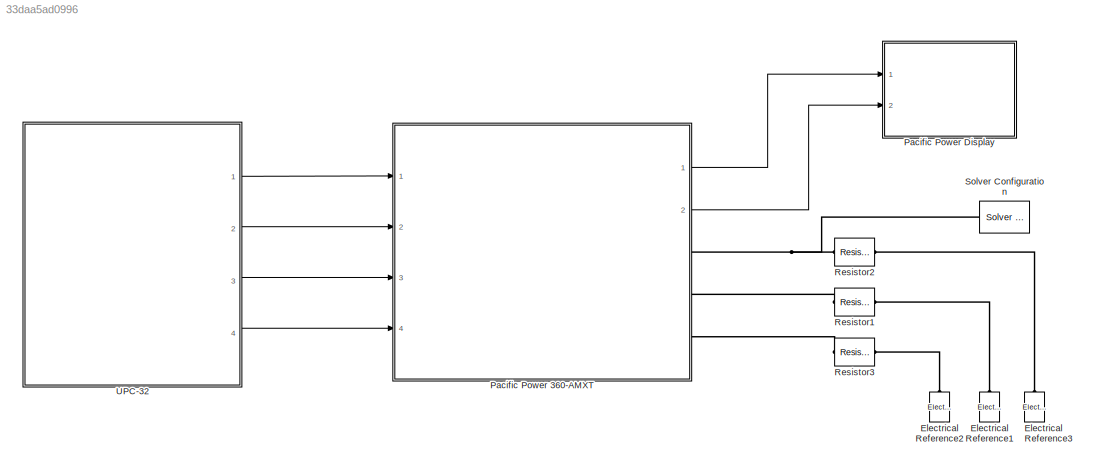
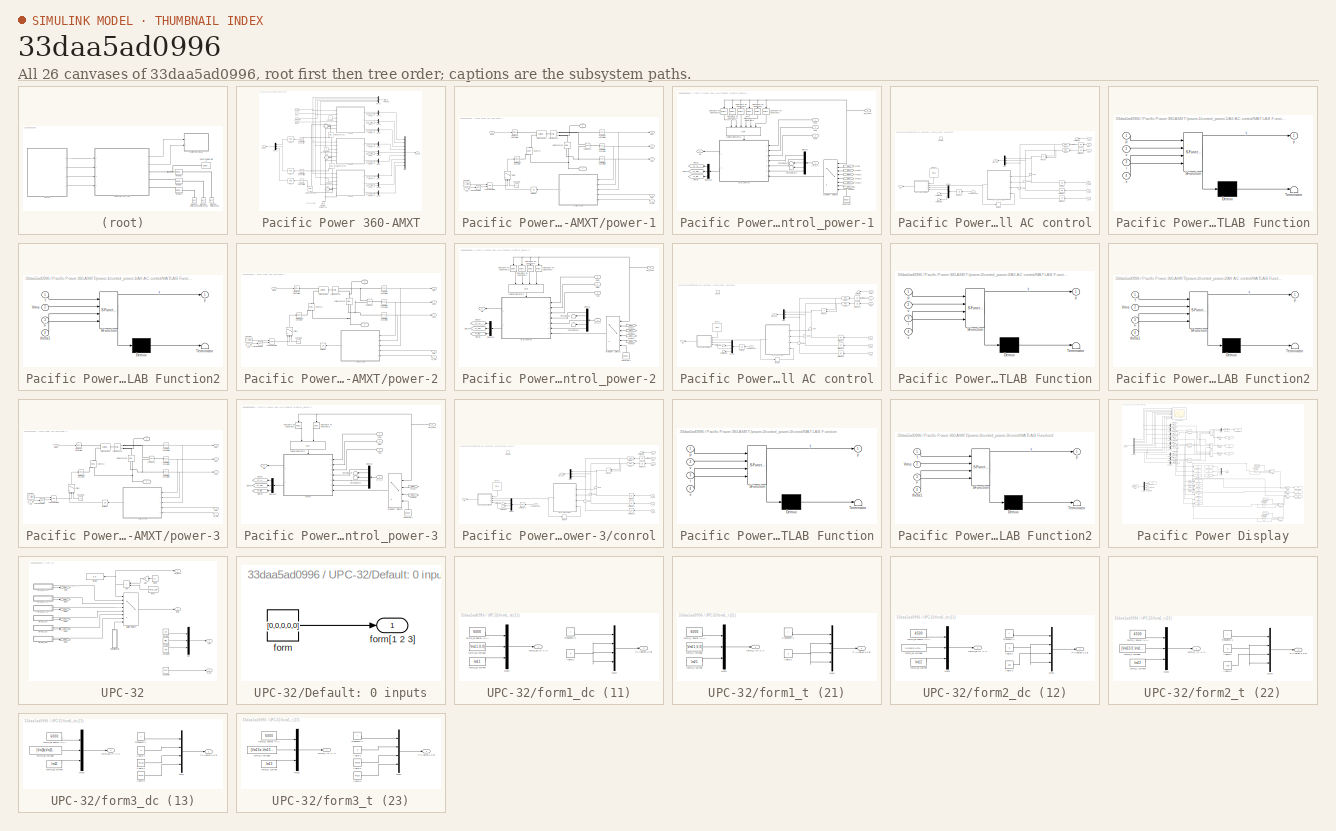
[diagram: thumbnail index - all 26 canvases of the model, root first then tree order]
MODEL slx_33daa5ad0996
KIND model
CONFIG AbsTol = auto
CONFIG EnableMultiTasking = off
CONFIG FixedStep = 0.001
CONFIG MaxStep = auto
CONFIG MinStep = auto
CONFIG RelTol = 1e-3
CONFIG SampleTimeConstraint = Unconstrained
CONFIG SolverName = VariableStepAuto
CONFIG StartTime = 0.0
CONFIG StopTime = 10
BLOCK [Reference] Electrical Reference1  REF=fl_lib/Electrical/Electrical Elements/Electrical Reference
  NameLocation = right
  Ports = [0, 0, 0, 0, 0, 1]
  SourceBlock = fl_lib/Electrical/Electrical Elements/Electrical Reference
  SourceProductBaseCode = SS
  SourceType = Electrical Reference
BLOCK [Reference] Electrical Reference2  REF=fl_lib/Electrical/Electrical Elements/Electrical Reference
  NameLocation = right
  Ports = [0, 0, 0, 0, 0, 1]
  SourceBlock = fl_lib/Electrical/Electrical Elements/Electrical Reference
  SourceProductBaseCode = SS
  SourceType = Electrical Reference
BLOCK [Reference] Electrical Reference3  REF=fl_lib/Electrical/Electrical Elements/Electrical Reference
  NameLocation = right
  Ports = [0, 0, 0, 0, 0, 1]
  SourceBlock = fl_lib/Electrical/Electrical Elements/Electrical Reference
  SourceProductBaseCode = SS
  SourceType = Electrical Reference
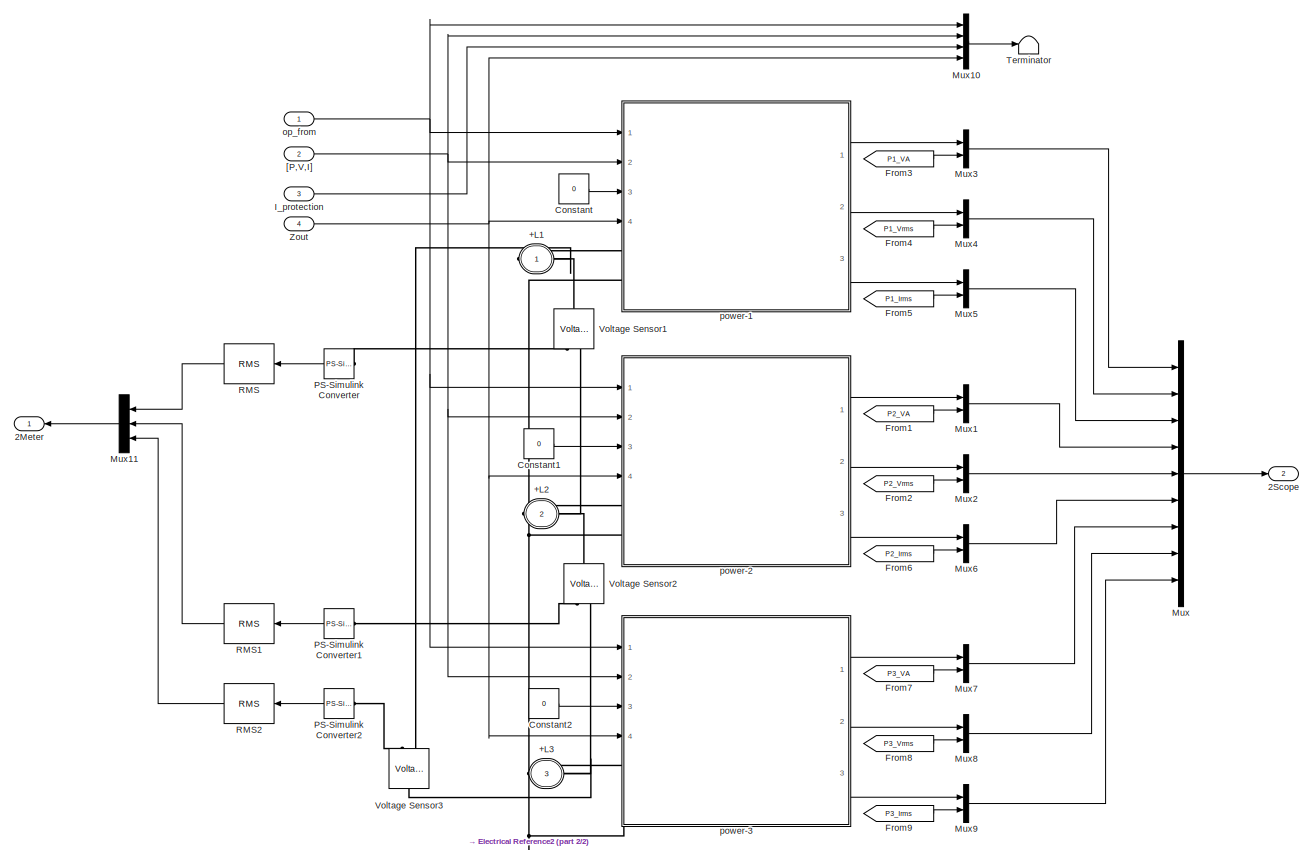
[diagram: Pacific Power 360-AMXT - part 1/2, most of the canvas]
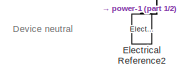
[diagram: Pacific Power 360-AMXT - part 2/2, bottom center region]
BLOCK [SubSystem] Pacific Power 360-AMXT
  Ports = [4, 2, 0, 0, 0, 0, 3]
  RequestExecContextInheritance = off
BLOCK [PMIOPort] Pacific Power 360-AMXT/+L1
  Side = Right
BLOCK [PMIOPort] Pacific Power 360-AMXT/+L2
  Port = 2
  Side = Right
BLOCK [PMIOPort] Pacific Power 360-AMXT/+L3
  Port = 3
  Side = Right
BLOCK [Outport] Pacific Power 360-AMXT/2Meter
  VectorParamsAs1DForOutWhenUnconnected = off
BLOCK [Outport] Pacific Power 360-AMXT/2Scope
  Port = 2
  VectorParamsAs1DForOutWhenUnconnected = off
BLOCK [Constant] Pacific Power 360-AMXT/Constant
  Value = 0
BLOCK [Constant] Pacific Power 360-AMXT/Constant1
  Value = 0
BLOCK [Constant] Pacific Power 360-AMXT/Constant2
  Value = 0
BLOCK [Reference] Pacific Power 360-AMXT/Electrical Reference2  REF=fl_lib/Electrical/Electrical Elements/Electrical Reference
  NameLocation = right
  Ports = [0, 0, 0, 0, 0, 1]
  SourceBlock = fl_lib/Electrical/Electrical Elements/Electrical Reference
  SourceProductBaseCode = SS
  SourceType = Electrical Reference
BLOCK [From] Pacific Power 360-AMXT/From1
  GotoTag = P2_VA
  NameLocation = top
  TagVisibility = global
BLOCK [From] Pacific Power 360-AMXT/From2
  GotoTag = P2_Vrms
  NameLocation = top
  TagVisibility = global
BLOCK [From] Pacific Power 360-AMXT/From3
  GotoTag = P1_VA
  NameLocation = top
  TagVisibility = global
BLOCK [From] Pacific Power 360-AMXT/From4
  GotoTag = P1_Vrms
  NameLocation = top
  TagVisibility = global
BLOCK [From] Pacific Power 360-AMXT/From5
  GotoTag = P1_Irms
  NameLocation = top
  TagVisibility = global
BLOCK [From] Pacific Power 360-AMXT/From6
  GotoTag = P2_Irms
  NameLocation = top
  TagVisibility = global
BLOCK [From] Pacific Power 360-AMXT/From7
  GotoTag = P3_VA
  NameLocation = top
  TagVisibility = global
BLOCK [From] Pacific Power 360-AMXT/From8
  GotoTag = P3_Vrms
  NameLocation = top
  TagVisibility = global
BLOCK [From] Pacific Power 360-AMXT/From9
  GotoTag = P3_Irms
  NameLocation = top
  TagVisibility = global
BLOCK [Inport] Pacific Power 360-AMXT/I_protection
  Port = 3
BLOCK [Mux] Pacific Power 360-AMXT/Mux
  DisplayOption = bar
  Inputs = 9
  Ports = [9, 1]
BLOCK [Mux] Pacific Power 360-AMXT/Mux1
  DisplayOption = bar
  Inputs = 2
  Ports = [2, 1]
BLOCK [Mux] Pacific Power 360-AMXT/Mux10
  DisplayOption = bar
  Ports = [4, 1]
BLOCK [Mux] Pacific Power 360-AMXT/Mux11
  DisplayOption = bar
  Inputs = 3
  Ports = [3, 1]
BLOCK [Mux] Pacific Power 360-AMXT/Mux2
  DisplayOption = bar
  Inputs = 2
  Ports = [2, 1]
BLOCK [Mux] Pacific Power 360-AMXT/Mux3
  DisplayOption = bar
  Inputs = 2
  Ports = [2, 1]
BLOCK [Mux] Pacific Power 360-AMXT/Mux4
  DisplayOption = bar
  Inputs = 2
  Ports = [2, 1]
BLOCK [Mux] Pacific Power 360-AMXT/Mux5
  DisplayOption = bar
  Inputs = 2
  Ports = [2, 1]
BLOCK [Mux] Pacific Power 360-AMXT/Mux6
  DisplayOption = bar
  Inputs = 2
  Ports = [2, 1]
BLOCK [Mux] Pacific Power 360-AMXT/Mux7
  DisplayOption = bar
  Inputs = 2
  Ports = [2, 1]
BLOCK [Mux] Pacific Power 360-AMXT/Mux8
  DisplayOption = bar
  Inputs = 2
  Ports = [2, 1]
BLOCK [Mux] Pacific Power 360-AMXT/Mux9
  DisplayOption = bar
  Inputs = 2
  Ports = [2, 1]
BLOCK [Reference] Pacific Power 360-AMXT/PS-Simulink Converter  REF=nesl_utility/PS-Simulink
Converter
  Ports = [0, 1, 0, 0, 0, 1]
  SourceBlock = nesl_utility/PS-Simulink\nConverter
  SourceProductBaseCode = SS
  SourceType = PS-Simulink\nConverter
BLOCK [Reference] Pacific Power 360-AMXT/PS-Simulink Converter1  REF=nesl_utility/PS-Simulink
Converter
  Ports = [0, 1, 0, 0, 0, 1]
  SourceBlock = nesl_utility/PS-Simulink\nConverter
  SourceProductBaseCode = SS
  SourceType = PS-Simulink\nConverter
BLOCK [Reference] Pacific Power 360-AMXT/PS-Simulink Converter2  REF=nesl_utility/PS-Simulink
Converter
  Ports = [0, 1, 0, 0, 0, 1]
  SourceBlock = nesl_utility/PS-Simulink\nConverter
  SourceProductBaseCode = SS
  SourceType = PS-Simulink\nConverter
BLOCK [Reference] Pacific Power 360-AMXT/RMS  REF=powerlib_meascontrol/Measurements/RMS
  Ports = [1, 1]
  SourceBlock = powerlib_meascontrol/Measurements/RMS
  SourceProductBaseCode = PS
  SourceType = RMS
BLOCK [Reference] Pacific Power 360-AMXT/RMS1  REF=powerlib_meascontrol/Measurements/RMS
  Ports = [1, 1]
  SourceBlock = powerlib_meascontrol/Measurements/RMS
  SourceProductBaseCode = PS
  SourceType = RMS
BLOCK [Reference] Pacific Power 360-AMXT/RMS2  REF=powerlib_meascontrol/Measurements/RMS
  Ports = [1, 1]
  SourceBlock = powerlib_meascontrol/Measurements/RMS
  SourceProductBaseCode = PS
  SourceType = RMS
BLOCK [Terminator] Pacific Power 360-AMXT/Terminator
BLOCK [Reference] Pacific Power 360-AMXT/Voltage Sensor1  REF=fl_lib/Electrical/Electrical Sensors/Voltage Sensor
  NameLocation = right
  Ports = [0, 0, 0, 0, 0, 1, 2]
  SourceBlock = fl_lib/Electrical/Electrical Sensors/Voltage Sensor
  SourceProductBaseCode = SS
  SourceType = Voltage Sensor
BLOCK [Reference] Pacific Power 360-AMXT/Voltage Sensor2  REF=fl_lib/Electrical/Electrical Sensors/Voltage Sensor
  NameLocation = right
  Ports = [0, 0, 0, 0, 0, 1, 2]
  SourceBlock = fl_lib/Electrical/Electrical Sensors/Voltage Sensor
  SourceProductBaseCode = SS
  SourceType = Voltage Sensor
BLOCK [Reference] Pacific Power 360-AMXT/Voltage Sensor3  REF=fl_lib/Electrical/Electrical Sensors/Voltage Sensor
  NameLocation = left
  Ports = [0, 0, 0, 0, 0, 1, 2]
  SourceBlock = fl_lib/Electrical/Electrical Sensors/Voltage Sensor
  SourceProductBaseCode = SS
  SourceType = Voltage Sensor
BLOCK [Inport] Pacific Power 360-AMXT/Zout
  Port = 4
BLOCK [Inport] Pacific Power 360-AMXT/[P,V,I]
  Port = 2
BLOCK [Inport] Pacific Power 360-AMXT/op_from
BLOCK [SubSystem] Pacific Power 360-AMXT/power-1
  Ports = [4, 3, 0, 0, 0, 2]
  RequestExecContextInheritance = off
BLOCK [PMIOPort] Pacific Power 360-AMXT/power-1/+
  NameLocation = top
  Side = Left
  Tag = PMCPort
BLOCK [PMIOPort] Pacific Power 360-AMXT/power-1/-
  NameLocation = top
  Port = 2
  Side = Left
  Tag = PMCPort
BLOCK [Constant] Pacific Power 360-AMXT/power-1/Constant
  NameLocation = top
  Value = p_switch
BLOCK [Constant] Pacific Power 360-AMXT/power-1/Constant4
  NameLocation = top
  Value = 0.1
BLOCK [Reference] Pacific Power 360-AMXT/power-1/Current Sensor  REF=fl_lib/Electrical/Electrical Sensors/Current Sensor
  Ports = [0, 0, 0, 0, 0, 1, 2]
  SourceBlock = fl_lib/Electrical/Electrical Sensors/Current Sensor
  SourceProductBaseCode = SS
  SourceType = Current Sensor
BLOCK [Inport] Pacific Power 360-AMXT/power-1/I_prt
  Port = 3
BLOCK [Outport] Pacific Power 360-AMXT/power-1/Iout
  Port = 3
  VectorParamsAs1DForOutWhenUnconnected = off
BLOCK [Logic] Pacific Power 360-AMXT/power-1/Logical Operator1
  AllPortsSameDT = off
  NameLocation = top
  OutDataTypeStr = boolean
  Ports = [2, 1]
BLOCK [Logic] Pacific Power 360-AMXT/power-1/Logical Operator2
  AllPortsSameDT = off
  NameLocation = top
  Operator = NOT
  OutDataTypeStr = boolean
  Ports = [1, 1]
BLOCK [Reference] Pacific Power 360-AMXT/power-1/NHR 9410  REF=fl_lib/Electrical/Electrical Sources/Controlled Voltage
Source
  NameLocation = right
  Ports = [0, 0, 0, 0, 0, 1, 2]
  SourceBlock = fl_lib/Electrical/Electrical Sources/Controlled Voltage\nSource
  SourceProductBaseCode = SS
  SourceType = Controlled Voltage\nSource
BLOCK [Reference] Pacific Power 360-AMXT/power-1/PS Product  REF=fl_ps_legacy_lib/Legacy Physical
Signals/Functions/PS Product
  Ports = [0, 0, 0, 0, 0, 2, 1]
  SourceBlock = fl_ps_legacy_lib/Legacy Physical\nSignals/Functions/PS Product
  SourceProductBaseCode = SS
  SourceType = PS Product
BLOCK [Reference] Pacific Power 360-AMXT/power-1/PS-Simulink Converter1  REF=nesl_utility/PS-Simulink
Converter
  Ports = [0, 1, 0, 0, 0, 1]
  SourceBlock = nesl_utility/PS-Simulink\nConverter
  SourceProductBaseCode = SS
  SourceType = PS-Simulink\nConverter
BLOCK [Reference] Pacific Power 360-AMXT/power-1/PS-Simulink Converter2  REF=nesl_utility/PS-Simulink
Converter
  Ports = [0, 1, 0, 0, 0, 1]
  SourceBlock = nesl_utility/PS-Simulink\nConverter
  SourceProductBaseCode = SS
  SourceType = PS-Simulink\nConverter
BLOCK [Reference] Pacific Power 360-AMXT/power-1/PS-Simulink Converter4  REF=nesl_utility/PS-Simulink
Converter
  Ports = [0, 1, 0, 0, 0, 1]
  SourceBlock = nesl_utility/PS-Simulink\nConverter
  SourceProductBaseCode = SS
  SourceType = PS-Simulink\nConverter
BLOCK [Outport] Pacific Power 360-AMXT/power-1/Pout
  VectorParamsAs1DForOutWhenUnconnected = off
BLOCK [Reference] Pacific Power 360-AMXT/power-1/Series Resistor  REF=fl_lib/Electrical/Electrical Elements/Variable Resistor
  Ports = [0, 0, 0, 0, 0, 2, 1]
  SourceBlock = fl_lib/Electrical/Electrical Elements/Variable Resistor
  SourceProductBaseCode = SS
  SourceType = Variable Resistor
BLOCK [Reference] Pacific Power 360-AMXT/power-1/Simulink-PS Converter  REF=nesl_utility/Simulink-PS
Converter
  Ports = [1, 0, 0, 0, 0, 0, 1]
  SourceBlock = nesl_utility/Simulink-PS\nConverter
  SourceProductBaseCode = SS
  SourceType = Simulink-PS\nConverter
BLOCK [Reference] Pacific Power 360-AMXT/power-1/Simulink-PS Converter1  REF=nesl_utility/Simulink-PS
Converter
  Ports = [1, 0, 0, 0, 0, 0, 1]
  SourceBlock = nesl_utility/Simulink-PS\nConverter
  SourceProductBaseCode = SS
  SourceType = Simulink-PS\nConverter
BLOCK [Switch] Pacific Power 360-AMXT/power-1/Switch
  Criteria = u2 > Threshold
  InputSameDT = off
  NameLocation = left
  SaturateOnIntegerOverflow = off
  ZeroCross = off
BLOCK [UnitDelay] Pacific Power 360-AMXT/power-1/Unit Delay
  HasFrameUpgradeWarning = on
  NameLocation = top
  SampleTime = -1
BLOCK [Reference] Pacific Power 360-AMXT/power-1/Voltage Sensor1  REF=fl_lib/Electrical/Electrical Sensors/Voltage Sensor
  NameLocation = right
  Ports = [0, 0, 0, 0, 0, 1, 2]
  SourceBlock = fl_lib/Electrical/Electrical Sensors/Voltage Sensor
  SourceProductBaseCode = SS
  SourceType = Voltage Sensor
BLOCK [Outport] Pacific Power 360-AMXT/power-1/Vout
  Port = 2
  VectorParamsAs1DForOutWhenUnconnected = off
BLOCK [Inport] Pacific Power 360-AMXT/power-1/Zout
  Port = 4
BLOCK [Inport] Pacific Power 360-AMXT/power-1/[P,V,I]
  Port = 2
BLOCK [SubSystem] Pacific Power 360-AMXT/power-1/control_power-1
  Ports = [5, 1]
  RequestExecContextInheritance = off
BLOCK [SubSystem] Pacific Power 360-AMXT/power-1/control_power-1/All AC control
  MinAlgLoopOccurrences = on
  Ports = [7, 2, 1]
  RequestExecContextInheritance = off
BLOCK [Clock] Pacific Power 360-AMXT/power-1/control_power-1/All AC control/Clock2
  DisplayTime = on
  NameLocation = right
BLOCK [Demux] Pacific Power 360-AMXT/power-1/control_power-1/All AC control/Demux
  NameLocation = top
  Ports = [1, 4]
BLOCK [EnablePort] Pacific Power 360-AMXT/power-1/control_power-1/All AC control/Enable
  Ports = []
BLOCK [Inport] Pacific Power 360-AMXT/power-1/control_power-1/All AC control/F [Angles-1,2,3]
  Port = 7
BLOCK [Inport] Pacific Power 360-AMXT/power-1/control_power-1/All AC control/I_set
  Port = 6
BLOCK [Inport] Pacific Power 360-AMXT/power-1/control_power-1/All AC control/Iout
  Port = 3
BLOCK [SubSystem] Pacific Power 360-AMXT/power-1/control_power-1/All AC control/MATLAB Function
  ErrorFcn = Stateflow.Translate.translate
  NameLocation = top
  PermitHierarchicalResolution = ExplicitOnly
  Ports = [4, 1]
  RequestExecContextInheritance = off
  SFBlockType = MATLAB Function
  TreatAsAtomicUnit = on
BLOCK [Demux] Pacific Power 360-AMXT/power-1/control_power-1/All AC control/MATLAB Function/ Demux 
  Outputs = 1
  Ports = [1, 1]
BLOCK [S-Function] Pacific Power 360-AMXT/power-1/control_power-1/All AC control/MATLAB Function/ SFunction 
  EnableBusSupport = on
  FunctionName = sf_sfun
  PortCounts = [4 2]
  Ports = [4, 2]
  SFcnIsStateOwnerBlock = off
  SFunctionDeploymentMode = off
  Tag = Stateflow S-Function 1
BLOCK [Terminator] Pacific Power 360-AMXT/power-1/control_power-1/All AC control/MATLAB Function/ Terminator 
BLOCK [Inport] Pacific Power 360-AMXT/power-1/control_power-1/All AC control/MATLAB Function/i
  Port = 3
BLOCK [Inport] Pacific Power 360-AMXT/power-1/control_power-1/All AC control/MATLAB Function/p
BLOCK [Inport] Pacific Power 360-AMXT/power-1/control_power-1/All AC control/MATLAB Function/v
  Port = 2
BLOCK [Inport] Pacific Power 360-AMXT/power-1/control_power-1/All AC control/MATLAB Function/x
  Port = 4
BLOCK [Outport] Pacific Power 360-AMXT/power-1/control_power-1/All AC control/MATLAB Function/y
  VectorParamsAs1DForOutWhenUnconnected = off
BLOCK [SubSystem] Pacific Power 360-AMXT/power-1/control_power-1/All AC control/MATLAB Function2
  ErrorFcn = Stateflow.Translate.translate
  PermitHierarchicalResolution = ExplicitOnly
  Ports = [4, 1]
  RequestExecContextInheritance = off
  SFBlockType = MATLAB Function
  TreatAsAtomicUnit = on
BLOCK [Demux] Pacific Power 360-AMXT/power-1/control_power-1/All AC control/MATLAB Function2/ Demux 
  Outputs = 1
  Ports = [1, 1]
BLOCK [S-Function] Pacific Power 360-AMXT/power-1/control_power-1/All AC control/MATLAB Function2/ SFunction 
  EnableBusSupport = on
  FunctionName = sf_sfun
  PortCounts = [4 2]
  Ports = [4, 2]
  SFcnIsStateOwnerBlock = off
  SFunctionDeploymentMode = off
  Tag = Stateflow S-Function 3
BLOCK [Terminator] Pacific Power 360-AMXT/power-1/control_power-1/All AC control/MATLAB Function2/ Terminator 
BLOCK [Inport] Pacific Power 360-AMXT/power-1/control_power-1/All AC control/MATLAB Function2/F
  Port = 3
BLOCK [Inport] Pacific Power 360-AMXT/power-1/control_power-1/All AC control/MATLAB Function2/Vrms
  Port = 2
BLOCK [Inport] Pacific Power 360-AMXT/power-1/control_power-1/All AC control/MATLAB Function2/t
BLOCK [Inport] Pacific Power 360-AMXT/power-1/control_power-1/All AC control/MATLAB Function2/theta1
  Port = 4
BLOCK [Outport] Pacific Power 360-AMXT/power-1/control_power-1/All AC control/MATLAB Function2/y
  VectorParamsAs1DForOutWhenUnconnected = off
BLOCK [Memory] Pacific Power 360-AMXT/power-1/control_power-1/All AC control/Memory
BLOCK [Mux] Pacific Power 360-AMXT/power-1/control_power-1/All AC control/Mux
  DisplayOption = bar
  Inputs = 3
  NameLocation = top
  Ports = [3, 1]
BLOCK [Inport] Pacific Power 360-AMXT/power-1/control_power-1/All AC control/P_set
  Port = 4
BLOCK [Inport] Pacific Power 360-AMXT/power-1/control_power-1/All AC control/Pout
BLOCK [Product] Pacific Power 360-AMXT/power-1/control_power-1/All AC control/Product
  Ports = [2, 1]
BLOCK [Reference] Pacific Power 360-AMXT/power-1/control_power-1/All AC control/RMS1  REF=powerlib_meascontrol/Measurements/RMS
  NameLocation = top
  Ports = [1, 1]
  SourceBlock = powerlib_meascontrol/Measurements/RMS
  SourceProductBaseCode = PS
  SourceType = RMS
BLOCK [Reference] Pacific Power 360-AMXT/power-1/control_power-1/All AC control/RMS2  REF=powerlib_meascontrol/Measurements/RMS
  NameLocation = top
  Ports = [1, 1]
  SourceBlock = powerlib_meascontrol/Measurements/RMS
  SourceProductBaseCode = PS
  SourceType = RMS
BLOCK [Sum] Pacific Power 360-AMXT/power-1/control_power-1/All AC control/Sum
  Inputs = -+
  NameLocation = top
  Ports = [2, 1]
BLOCK [Sum] Pacific Power 360-AMXT/power-1/control_power-1/All AC control/Sum1
  Inputs = -+
  NameLocation = top
  Ports = [2, 1]
BLOCK [Sum] Pacific Power 360-AMXT/power-1/control_power-1/All AC control/Sum2
  Inputs = -+
  NameLocation = top
  Ports = [2, 1]
BLOCK [Terminator] Pacific Power 360-AMXT/power-1/control_power-1/All AC control/Terminator
  NameLocation = top
BLOCK [Terminator] Pacific Power 360-AMXT/power-1/control_power-1/All AC control/Terminator2
  NameLocation = top
BLOCK [Terminator] Pacific Power 360-AMXT/power-1/control_power-1/All AC control/Terminator3
  NameLocation = top
BLOCK [UnitDelay] Pacific Power 360-AMXT/power-1/control_power-1/All AC control/Unit Delay
  HasFrameUpgradeWarning = on
  NameLocation = top
  SampleTime = -1
BLOCK [UnitDelay] Pacific Power 360-AMXT/power-1/control_power-1/All AC control/Unit Delay1
  HasFrameUpgradeWarning = on
  NameLocation = top
  SampleTime = -1
BLOCK [UnitDelay] Pacific Power 360-AMXT/power-1/control_power-1/All AC control/Unit Delay2
  HasFrameUpgradeWarning = on
  NameLocation = top
  SampleTime = -1
BLOCK [UnitDelay] Pacific Power 360-AMXT/power-1/control_power-1/All AC control/Unit Delay3
  HasFrameUpgradeWarning = on
  NameLocation = top
  SampleTime = -1
BLOCK [UnitDelay] Pacific Power 360-AMXT/power-1/control_power-1/All AC control/Unit Delay4
  HasFrameUpgradeWarning = on
  NameLocation = top
  SampleTime = -1
BLOCK [UnitDelay] Pacific Power 360-AMXT/power-1/control_power-1/All AC control/Unit Delay5
  HasFrameUpgradeWarning = on
  NameLocation = top
  SampleTime = -1
BLOCK [Inport] Pacific Power 360-AMXT/power-1/control_power-1/All AC control/V_set
  Port = 5
BLOCK [Outport] Pacific Power 360-AMXT/power-1/control_power-1/All AC control/Vin
  VectorParamsAs1DForOutWhenUnconnected = off
BLOCK [Inport] Pacific Power 360-AMXT/power-1/control_power-1/All AC control/Vout
  Port = 2
BLOCK [Outport] Pacific Power 360-AMXT/power-1/control_power-1/All AC control/rms_out
  Port = 2
  VectorParamsAs1DForOutWhenUnconnected = off
BLOCK [Reference] Pacific Power 360-AMXT/power-1/control_power-1/Compare To Constant1  REF=simulink/Logic and Bit
Operations/Compare
To Constant
  NameLocation = left
  Ports = [1, 1]
  SourceBlock = simulink/Logic and Bit\nOperations/Compare\nTo Constant
  SourceProductBaseCode = SL
  SourceType = Compare To Constant
BLOCK [Reference] Pacific Power 360-AMXT/power-1/control_power-1/Compare To Constant12  REF=simulink/Logic and Bit
Operations/Compare
To Constant
  NameLocation = left
  Ports = [1, 1]
  SourceBlock = simulink/Logic and Bit\nOperations/Compare\nTo Constant
  SourceProductBaseCode = SL
  SourceType = Compare To Constant
BLOCK [Reference] Pacific Power 360-AMXT/power-1/control_power-1/Compare To Constant13  REF=simulink/Logic and Bit
Operations/Compare
To Constant
  NameLocation = left
  Ports = [1, 1]
  SourceBlock = simulink/Logic and Bit\nOperations/Compare\nTo Constant
  SourceProductBaseCode = SL
  SourceType = Compare To Constant
BLOCK [Reference] Pacific Power 360-AMXT/power-1/control_power-1/Compare To Constant2  REF=simulink/Logic and Bit
Operations/Compare
To Constant
  NameLocation = left
  Ports = [1, 1]
  SourceBlock = simulink/Logic and Bit\nOperations/Compare\nTo Constant
  SourceProductBaseCode = SL
  SourceType = Compare To Constant
BLOCK [Reference] Pacific Power 360-AMXT/power-1/control_power-1/Compare To Constant3  REF=simulink/Logic and Bit
Operations/Compare
To Constant
  NameLocation = left
  Ports = [1, 1]
  SourceBlock = simulink/Logic and Bit\nOperations/Compare\nTo Constant
  SourceProductBaseCode = SL
  SourceType = Compare To Constant
BLOCK [Reference] Pacific Power 360-AMXT/power-1/control_power-1/Compare To Constant4  REF=simulink/Logic and Bit
Operations/Compare
To Constant
  NameLocation = left
  Ports = [1, 1]
  SourceBlock = simulink/Logic and Bit\nOperations/Compare\nTo Constant
  SourceProductBaseCode = SL
  SourceType = Compare To Constant
BLOCK [Constant] Pacific Power 360-AMXT/power-1/control_power-1/Constant1
  NameLocation = right
  Value = [0,0,0,0]
BLOCK [Demux] Pacific Power 360-AMXT/power-1/control_power-1/Demux
  NameLocation = top
  Outputs = 5
  Ports = [1, 5]
BLOCK [Demux] Pacific Power 360-AMXT/power-1/control_power-1/Demux2
  NameLocation = top
  Outputs = 3
  Ports = [1, 3]
BLOCK [From] Pacific Power 360-AMXT/power-1/control_power-1/From
  GotoTag = form11
  TagVisibility = global
BLOCK [From] Pacific Power 360-AMXT/power-1/control_power-1/From1
  GotoTag = form12
  TagVisibility = global
BLOCK [From] Pacific Power 360-AMXT/power-1/control_power-1/From2
  GotoTag = form13
  TagVisibility = global
BLOCK [From] Pacific Power 360-AMXT/power-1/control_power-1/From3
  GotoTag = form21
  TagVisibility = global
BLOCK [From] Pacific Power 360-AMXT/power-1/control_power-1/From4
  GotoTag = form22
  TagVisibility = global
BLOCK [From] Pacific Power 360-AMXT/power-1/control_power-1/From5
  GotoTag = form23
  TagVisibility = global
BLOCK [Goto] Pacific Power 360-AMXT/power-1/control_power-1/Goto3
  GotoTag = P1_VA
  NameLocation = top
  TagVisibility = global
BLOCK [Goto] Pacific Power 360-AMXT/power-1/control_power-1/Goto4
  GotoTag = P1_Vrms
  NameLocation = top
  TagVisibility = global
BLOCK [Goto] Pacific Power 360-AMXT/power-1/control_power-1/Goto5
  GotoTag = P1_Irms
  NameLocation = top
  TagVisibility = global
BLOCK [Inport] Pacific Power 360-AMXT/power-1/control_power-1/Iout
  Port = 3
BLOCK [Logic] Pacific Power 360-AMXT/power-1/control_power-1/Logical Operator1
  AllPortsSameDT = off
  Inputs = 6
  NameLocation = left
  Operator = OR
  OutDataTypeStr = boolean
  Ports = [6, 1]
BLOCK [MultiPortSwitch] Pacific Power 360-AMXT/power-1/control_power-1/Multiport Switch1
  DataPortForDefault = Additional data port
  DataPortIndices = {11,12,13,21,22,23}
  DataPortOrder = Specify indices
  DiagnosticForDefault = None
  InputSameDT = off
  Inputs = 13
  Ports = [8, 1]
  SaturateOnIntegerOverflow = off
BLOCK [Inport] Pacific Power 360-AMXT/power-1/control_power-1/Pout
BLOCK [Terminator] Pacific Power 360-AMXT/power-1/control_power-1/Terminator
BLOCK [Terminator] Pacific Power 360-AMXT/power-1/control_power-1/Terminator1
BLOCK [Outport] Pacific Power 360-AMXT/power-1/control_power-1/Vin
  VectorParamsAs1DForOutWhenUnconnected = off
BLOCK [Inport] Pacific Power 360-AMXT/power-1/control_power-1/Vout
  Port = 2
BLOCK [Inport] Pacific Power 360-AMXT/power-1/control_power-1/[P,V,I]
  Port = 4
BLOCK [Inport] Pacific Power 360-AMXT/power-1/control_power-1/op_form
  NameLocation = top
  Port = 5
BLOCK [Inport] Pacific Power 360-AMXT/power-1/op_form
BLOCK [SubSystem] Pacific Power 360-AMXT/power-2
  Ports = [4, 3, 0, 0, 0, 2]
  RequestExecContextInheritance = off
BLOCK [PMIOPort] Pacific Power 360-AMXT/power-2/+
  NameLocation = top
  Side = Left
  Tag = PMCPort
BLOCK [PMIOPort] Pacific Power 360-AMXT/power-2/-
  NameLocation = top
  Port = 2
  Side = Left
  Tag = PMCPort
BLOCK [Constant] Pacific Power 360-AMXT/power-2/Constant
  NameLocation = top
  Value = p_switch
BLOCK [Constant] Pacific Power 360-AMXT/power-2/Constant4
  NameLocation = top
  Value = 0.1
BLOCK [Reference] Pacific Power 360-AMXT/power-2/Current Sensor  REF=fl_lib/Electrical/Electrical Sensors/Current Sensor
  Ports = [0, 0, 0, 0, 0, 1, 2]
  SourceBlock = fl_lib/Electrical/Electrical Sensors/Current Sensor
  SourceProductBaseCode = SS
  SourceType = Current Sensor
BLOCK [Inport] Pacific Power 360-AMXT/power-2/I_prt
  Port = 3
BLOCK [Outport] Pacific Power 360-AMXT/power-2/Iout
  Port = 3
  VectorParamsAs1DForOutWhenUnconnected = off
BLOCK [Logic] Pacific Power 360-AMXT/power-2/Logical Operator1
  AllPortsSameDT = off
  NameLocation = top
  OutDataTypeStr = boolean
  Ports = [2, 1]
BLOCK [Logic] Pacific Power 360-AMXT/power-2/Logical Operator2
  AllPortsSameDT = off
  NameLocation = top
  Operator = NOT
  OutDataTypeStr = boolean
  Ports = [1, 1]
BLOCK [Reference] Pacific Power 360-AMXT/power-2/NHR 9410  REF=fl_lib/Electrical/Electrical Sources/Controlled Voltage
Source
  NameLocation = right
  Ports = [0, 0, 0, 0, 0, 1, 2]
  SourceBlock = fl_lib/Electrical/Electrical Sources/Controlled Voltage\nSource
  SourceProductBaseCode = SS
  SourceType = Controlled Voltage\nSource
BLOCK [Reference] Pacific Power 360-AMXT/power-2/PS Product  REF=fl_ps_legacy_lib/Legacy Physical
Signals/Functions/PS Product
  Ports = [0, 0, 0, 0, 0, 2, 1]
  SourceBlock = fl_ps_legacy_lib/Legacy Physical\nSignals/Functions/PS Product
  SourceProductBaseCode = SS
  SourceType = PS Product
BLOCK [Reference] Pacific Power 360-AMXT/power-2/PS-Simulink Converter1  REF=nesl_utility/PS-Simulink
Converter
  Ports = [0, 1, 0, 0, 0, 1]
  SourceBlock = nesl_utility/PS-Simulink\nConverter
  SourceProductBaseCode = SS
  SourceType = PS-Simulink\nConverter
BLOCK [Reference] Pacific Power 360-AMXT/power-2/PS-Simulink Converter2  REF=nesl_utility/PS-Simulink
Converter
  Ports = [0, 1, 0, 0, 0, 1]
  SourceBlock = nesl_utility/PS-Simulink\nConverter
  SourceProductBaseCode = SS
  SourceType = PS-Simulink\nConverter
BLOCK [Reference] Pacific Power 360-AMXT/power-2/PS-Simulink Converter4  REF=nesl_utility/PS-Simulink
Converter
  Ports = [0, 1, 0, 0, 0, 1]
  SourceBlock = nesl_utility/PS-Simulink\nConverter
  SourceProductBaseCode = SS
  SourceType = PS-Simulink\nConverter
BLOCK [Outport] Pacific Power 360-AMXT/power-2/Pout
  VectorParamsAs1DForOutWhenUnconnected = off
BLOCK [Reference] Pacific Power 360-AMXT/power-2/Series Resistor  REF=fl_lib/Electrical/Electrical Elements/Variable Resistor
  Ports = [0, 0, 0, 0, 0, 2, 1]
  SourceBlock = fl_lib/Electrical/Electrical Elements/Variable Resistor
  SourceProductBaseCode = SS
  SourceType = Variable Resistor
BLOCK [Reference] Pacific Power 360-AMXT/power-2/Simulink-PS Converter  REF=nesl_utility/Simulink-PS
Converter
  Ports = [1, 0, 0, 0, 0, 0, 1]
  SourceBlock = nesl_utility/Simulink-PS\nConverter
  SourceProductBaseCode = SS
  SourceType = Simulink-PS\nConverter
BLOCK [Reference] Pacific Power 360-AMXT/power-2/Simulink-PS Converter1  REF=nesl_utility/Simulink-PS
Converter
  Ports = [1, 0, 0, 0, 0, 0, 1]
  SourceBlock = nesl_utility/Simulink-PS\nConverter
  SourceProductBaseCode = SS
  SourceType = Simulink-PS\nConverter
BLOCK [Switch] Pacific Power 360-AMXT/power-2/Switch
  Criteria = u2 > Threshold
  InputSameDT = off
  NameLocation = left
  SaturateOnIntegerOverflow = off
  ZeroCross = off
BLOCK [UnitDelay] Pacific Power 360-AMXT/power-2/Unit Delay
  HasFrameUpgradeWarning = on
  NameLocation = top
  SampleTime = -1
BLOCK [Reference] Pacific Power 360-AMXT/power-2/Voltage Sensor1  REF=fl_lib/Electrical/Electrical Sensors/Voltage Sensor
  NameLocation = right
  Ports = [0, 0, 0, 0, 0, 1, 2]
  SourceBlock = fl_lib/Electrical/Electrical Sensors/Voltage Sensor
  SourceProductBaseCode = SS
  SourceType = Voltage Sensor
BLOCK [Outport] Pacific Power 360-AMXT/power-2/Vout
  Port = 2
  VectorParamsAs1DForOutWhenUnconnected = off
BLOCK [Inport] Pacific Power 360-AMXT/power-2/Zout
  Port = 4
BLOCK [Inport] Pacific Power 360-AMXT/power-2/[P,V,I]
  Port = 2
BLOCK [SubSystem] Pacific Power 360-AMXT/power-2/control_power-2
  Ports = [5, 1]
  RequestExecContextInheritance = off
BLOCK [SubSystem] Pacific Power 360-AMXT/power-2/control_power-2/All AC control
  MinAlgLoopOccurrences = on
  Ports = [7, 2, 1]
  RequestExecContextInheritance = off
BLOCK [Clock] Pacific Power 360-AMXT/power-2/control_power-2/All AC control/Clock2
  DisplayTime = on
  NameLocation = right
BLOCK [Demux] Pacific Power 360-AMXT/power-2/control_power-2/All AC control/Demux
  NameLocation = top
  Ports = [1, 4]
BLOCK [EnablePort] Pacific Power 360-AMXT/power-2/control_power-2/All AC control/Enable
  Ports = []
BLOCK [Inport] Pacific Power 360-AMXT/power-2/control_power-2/All AC control/F [Angles-1,2,3]
  Port = 7
BLOCK [Inport] Pacific Power 360-AMXT/power-2/control_power-2/All AC control/I_set
  Port = 6
BLOCK [Inport] Pacific Power 360-AMXT/power-2/control_power-2/All AC control/Iout
  Port = 3
BLOCK [SubSystem] Pacific Power 360-AMXT/power-2/control_power-2/All AC control/MATLAB Function
  ErrorFcn = Stateflow.Translate.translate
  NameLocation = top
  PermitHierarchicalResolution = ExplicitOnly
  Ports = [4, 1]
  RequestExecContextInheritance = off
  SFBlockType = MATLAB Function
  TreatAsAtomicUnit = on
BLOCK [Demux] Pacific Power 360-AMXT/power-2/control_power-2/All AC control/MATLAB Function/ Demux 
  Outputs = 1
  Ports = [1, 1]
BLOCK [S-Function] Pacific Power 360-AMXT/power-2/control_power-2/All AC control/MATLAB Function/ SFunction 
  EnableBusSupport = on
  FunctionName = sf_sfun
  PortCounts = [4 2]
  Ports = [4, 2]
  SFcnIsStateOwnerBlock = off
  SFunctionDeploymentMode = off
  Tag = Stateflow S-Function 2
BLOCK [Terminator] Pacific Power 360-AMXT/power-2/control_power-2/All AC control/MATLAB Function/ Terminator 
BLOCK [Inport] Pacific Power 360-AMXT/power-2/control_power-2/All AC control/MATLAB Function/i
  Port = 3
BLOCK [Inport] Pacific Power 360-AMXT/power-2/control_power-2/All AC control/MATLAB Function/p
BLOCK [Inport] Pacific Power 360-AMXT/power-2/control_power-2/All AC control/MATLAB Function/v
  Port = 2
BLOCK [Inport] Pacific Power 360-AMXT/power-2/control_power-2/All AC control/MATLAB Function/x
  Port = 4
BLOCK [Outport] Pacific Power 360-AMXT/power-2/control_power-2/All AC control/MATLAB Function/y
  VectorParamsAs1DForOutWhenUnconnected = off
BLOCK [SubSystem] Pacific Power 360-AMXT/power-2/control_power-2/All AC control/MATLAB Function2
  ErrorFcn = Stateflow.Translate.translate
  PermitHierarchicalResolution = ExplicitOnly
  Ports = [4, 1]
  RequestExecContextInheritance = off
  SFBlockType = MATLAB Function
  TreatAsAtomicUnit = on
BLOCK [Demux] Pacific Power 360-AMXT/power-2/control_power-2/All AC control/MATLAB Function2/ Demux 
  Outputs = 1
  Ports = [1, 1]
BLOCK [S-Function] Pacific Power 360-AMXT/power-2/control_power-2/All AC control/MATLAB Function2/ SFunction 
  EnableBusSupport = on
  FunctionName = sf_sfun
  PortCounts = [4 2]
  Ports = [4, 2]
  SFcnIsStateOwnerBlock = off
  SFunctionDeploymentMode = off
  Tag = Stateflow S-Function 4
BLOCK [Terminator] Pacific Power 360-AMXT/power-2/control_power-2/All AC control/MATLAB Function2/ Terminator 
BLOCK [Inport] Pacific Power 360-AMXT/power-2/control_power-2/All AC control/MATLAB Function2/F
  Port = 3
BLOCK [Inport] Pacific Power 360-AMXT/power-2/control_power-2/All AC control/MATLAB Function2/Vrms
  Port = 2
BLOCK [Inport] Pacific Power 360-AMXT/power-2/control_power-2/All AC control/MATLAB Function2/t
BLOCK [Inport] Pacific Power 360-AMXT/power-2/control_power-2/All AC control/MATLAB Function2/theta1
  Port = 4
BLOCK [Outport] Pacific Power 360-AMXT/power-2/control_power-2/All AC control/MATLAB Function2/y
  VectorParamsAs1DForOutWhenUnconnected = off
BLOCK [Memory] Pacific Power 360-AMXT/power-2/control_power-2/All AC control/Memory
BLOCK [Mux] Pacific Power 360-AMXT/power-2/control_power-2/All AC control/Mux
  DisplayOption = bar
  Inputs = 3
  NameLocation = top
  Ports = [3, 1]
BLOCK [Inport] Pacific Power 360-AMXT/power-2/control_power-2/All AC control/P_set
  Port = 4
BLOCK [Inport] Pacific Power 360-AMXT/power-2/control_power-2/All AC control/Pout
BLOCK [Product] Pacific Power 360-AMXT/power-2/control_power-2/All AC control/Product
  Ports = [2, 1]
BLOCK [Reference] Pacific Power 360-AMXT/power-2/control_power-2/All AC control/RMS1  REF=powerlib_meascontrol/Measurements/RMS
  NameLocation = top
  Ports = [1, 1]
  SourceBlock = powerlib_meascontrol/Measurements/RMS
  SourceProductBaseCode = PS
  SourceType = RMS
BLOCK [Reference] Pacific Power 360-AMXT/power-2/control_power-2/All AC control/RMS2  REF=powerlib_meascontrol/Measurements/RMS
  NameLocation = top
  Ports = [1, 1]
  SourceBlock = powerlib_meascontrol/Measurements/RMS
  SourceProductBaseCode = PS
  SourceType = RMS
BLOCK [Sum] Pacific Power 360-AMXT/power-2/control_power-2/All AC control/Sum
  Inputs = -+
  NameLocation = top
  Ports = [2, 1]
BLOCK [Sum] Pacific Power 360-AMXT/power-2/control_power-2/All AC control/Sum1
  Inputs = -+
  NameLocation = top
  Ports = [2, 1]
BLOCK [Sum] Pacific Power 360-AMXT/power-2/control_power-2/All AC control/Sum2
  Inputs = -+
  NameLocation = top
  Ports = [2, 1]
BLOCK [Terminator] Pacific Power 360-AMXT/power-2/control_power-2/All AC control/Terminator
  NameLocation = top
BLOCK [Terminator] Pacific Power 360-AMXT/power-2/control_power-2/All AC control/Terminator2
  NameLocation = top
BLOCK [Terminator] Pacific Power 360-AMXT/power-2/control_power-2/All AC control/Terminator3
  NameLocation = top
BLOCK [UnitDelay] Pacific Power 360-AMXT/power-2/control_power-2/All AC control/Unit Delay
  HasFrameUpgradeWarning = on
  NameLocation = top
  SampleTime = -1
BLOCK [UnitDelay] Pacific Power 360-AMXT/power-2/control_power-2/All AC control/Unit Delay1
  HasFrameUpgradeWarning = on
  NameLocation = top
  SampleTime = -1
BLOCK [UnitDelay] Pacific Power 360-AMXT/power-2/control_power-2/All AC control/Unit Delay2
  HasFrameUpgradeWarning = on
  NameLocation = top
  SampleTime = -1
BLOCK [UnitDelay] Pacific Power 360-AMXT/power-2/control_power-2/All AC control/Unit Delay3
  HasFrameUpgradeWarning = on
  NameLocation = top
  SampleTime = -1
BLOCK [UnitDelay] Pacific Power 360-AMXT/power-2/control_power-2/All AC control/Unit Delay4
  HasFrameUpgradeWarning = on
  NameLocation = top
  SampleTime = -1
BLOCK [UnitDelay] Pacific Power 360-AMXT/power-2/control_power-2/All AC control/Unit Delay5
  HasFrameUpgradeWarning = on
  NameLocation = top
  SampleTime = -1
BLOCK [Inport] Pacific Power 360-AMXT/power-2/control_power-2/All AC control/V_set
  Port = 5
BLOCK [Outport] Pacific Power 360-AMXT/power-2/control_power-2/All AC control/Vin
  VectorParamsAs1DForOutWhenUnconnected = off
BLOCK [Inport] Pacific Power 360-AMXT/power-2/control_power-2/All AC control/Vout
  Port = 2
BLOCK [Outport] Pacific Power 360-AMXT/power-2/control_power-2/All AC control/rms_out
  Port = 2
  VectorParamsAs1DForOutWhenUnconnected = off
BLOCK [Reference] Pacific Power 360-AMXT/power-2/control_power-2/Compare To Constant12  REF=simulink/Logic and Bit
Operations/Compare
To Constant
  NameLocation = left
  Ports = [1, 1]
  SourceBlock = simulink/Logic and Bit\nOperations/Compare\nTo Constant
  SourceProductBaseCode = SL
  SourceType = Compare To Constant
BLOCK [Reference] Pacific Power 360-AMXT/power-2/control_power-2/Compare To Constant2  REF=simulink/Logic and Bit
Operations/Compare
To Constant
  NameLocation = left
  Ports = [1, 1]
  SourceBlock = simulink/Logic and Bit\nOperations/Compare\nTo Constant
  SourceProductBaseCode = SL
  SourceType = Compare To Constant
BLOCK [Reference] Pacific Power 360-AMXT/power-2/control_power-2/Compare To Constant3  REF=simulink/Logic and Bit
Operations/Compare
To Constant
  NameLocation = left
  Ports = [1, 1]
  SourceBlock = simulink/Logic and Bit\nOperations/Compare\nTo Constant
  SourceProductBaseCode = SL
  SourceType = Compare To Constant
BLOCK [Reference] Pacific Power 360-AMXT/power-2/control_power-2/Compare To Constant4  REF=simulink/Logic and Bit
Operations/Compare
To Constant
  NameLocation = left
  Ports = [1, 1]
  SourceBlock = simulink/Logic and Bit\nOperations/Compare\nTo Constant
  SourceProductBaseCode = SL
  SourceType = Compare To Constant
BLOCK [Constant] Pacific Power 360-AMXT/power-2/control_power-2/Constant1
  NameLocation = right
  Value = [0,0,0,0]
BLOCK [Demux] Pacific Power 360-AMXT/power-2/control_power-2/Demux
  NameLocation = top
  Outputs = 5
  Ports = [1, 5]
BLOCK [Demux] Pacific Power 360-AMXT/power-2/control_power-2/Demux2
  NameLocation = top
  Outputs = 3
  Ports = [1, 3]
BLOCK [From] Pacific Power 360-AMXT/power-2/control_power-2/From1
  GotoTag = form12
  TagVisibility = global
BLOCK [From] Pacific Power 360-AMXT/power-2/control_power-2/From2
  GotoTag = form13
  TagVisibility = global
BLOCK [From] Pacific Power 360-AMXT/power-2/control_power-2/From4
  GotoTag = form22
  TagVisibility = global
BLOCK [From] Pacific Power 360-AMXT/power-2/control_power-2/From5
  GotoTag = form23
  TagVisibility = global
BLOCK [Goto] Pacific Power 360-AMXT/power-2/control_power-2/Goto3
  GotoTag = P2_VA
  NameLocation = top
  TagVisibility = global
BLOCK [Goto] Pacific Power 360-AMXT/power-2/control_power-2/Goto4
  GotoTag = P2_Vrms
  NameLocation = top
  TagVisibility = global
BLOCK [Goto] Pacific Power 360-AMXT/power-2/control_power-2/Goto5
  GotoTag = P2_Irms
  NameLocation = top
  TagVisibility = global
BLOCK [Inport] Pacific Power 360-AMXT/power-2/control_power-2/Iout
  Port = 3
BLOCK [Logic] Pacific Power 360-AMXT/power-2/control_power-2/Logical Operator1
  AllPortsSameDT = off
  Inputs = 4
  NameLocation = left
  Operator = OR
  OutDataTypeStr = boolean
  Ports = [4, 1]
BLOCK [MultiPortSwitch] Pacific Power 360-AMXT/power-2/control_power-2/Multiport Switch1
  DataPortForDefault = Additional data port
  DataPortIndices = {12,13,22,23}
  DataPortOrder = Specify indices
  DiagnosticForDefault = None
  InputSameDT = off
  Inputs = 13
  Ports = [6, 1]
  SaturateOnIntegerOverflow = off
BLOCK [Inport] Pacific Power 360-AMXT/power-2/control_power-2/Pout
BLOCK [Terminator] Pacific Power 360-AMXT/power-2/control_power-2/Terminator
BLOCK [Terminator] Pacific Power 360-AMXT/power-2/control_power-2/Terminator1
BLOCK [Outport] Pacific Power 360-AMXT/power-2/control_power-2/Vin
  VectorParamsAs1DForOutWhenUnconnected = off
BLOCK [Inport] Pacific Power 360-AMXT/power-2/control_power-2/Vout
  Port = 2
BLOCK [Inport] Pacific Power 360-AMXT/power-2/control_power-2/[P,V,I]
  Port = 4
BLOCK [Inport] Pacific Power 360-AMXT/power-2/control_power-2/op_form
  NameLocation = top
  Port = 5
BLOCK [Inport] Pacific Power 360-AMXT/power-2/op_form
BLOCK [SubSystem] Pacific Power 360-AMXT/power-3
  Ports = [4, 3, 0, 0, 0, 2]
  RequestExecContextInheritance = off
BLOCK [PMIOPort] Pacific Power 360-AMXT/power-3/+
  NameLocation = top
  Side = Left
  Tag = PMCPort
BLOCK [PMIOPort] Pacific Power 360-AMXT/power-3/-
  NameLocation = top
  Port = 2
  Side = Left
  Tag = PMCPort
BLOCK [Constant] Pacific Power 360-AMXT/power-3/Constant
  NameLocation = top
  Value = p_switch
BLOCK [Constant] Pacific Power 360-AMXT/power-3/Constant4
  NameLocation = top
  Value = 0.1
BLOCK [Reference] Pacific Power 360-AMXT/power-3/Current Sensor  REF=fl_lib/Electrical/Electrical Sensors/Current Sensor
  Ports = [0, 0, 0, 0, 0, 1, 2]
  SourceBlock = fl_lib/Electrical/Electrical Sensors/Current Sensor
  SourceProductBaseCode = SS
  SourceType = Current Sensor
BLOCK [Inport] Pacific Power 360-AMXT/power-3/I_prt
  Port = 3
BLOCK [Outport] Pacific Power 360-AMXT/power-3/Iout
  Port = 3
  VectorParamsAs1DForOutWhenUnconnected = off
BLOCK [Logic] Pacific Power 360-AMXT/power-3/Logical Operator1
  AllPortsSameDT = off
  NameLocation = top
  OutDataTypeStr = boolean
  Ports = [2, 1]
BLOCK [Logic] Pacific Power 360-AMXT/power-3/Logical Operator2
  AllPortsSameDT = off
  NameLocation = top
  Operator = NOT
  OutDataTypeStr = boolean
  Ports = [1, 1]
BLOCK [Reference] Pacific Power 360-AMXT/power-3/NHR 9410  REF=fl_lib/Electrical/Electrical Sources/Controlled Voltage
Source
  NameLocation = right
  Ports = [0, 0, 0, 0, 0, 1, 2]
  SourceBlock = fl_lib/Electrical/Electrical Sources/Controlled Voltage\nSource
  SourceProductBaseCode = SS
  SourceType = Controlled Voltage\nSource
BLOCK [Reference] Pacific Power 360-AMXT/power-3/PS Product  REF=fl_ps_legacy_lib/Legacy Physical
Signals/Functions/PS Product
  Ports = [0, 0, 0, 0, 0, 2, 1]
  SourceBlock = fl_ps_legacy_lib/Legacy Physical\nSignals/Functions/PS Product
  SourceProductBaseCode = SS
  SourceType = PS Product
BLOCK [Reference] Pacific Power 360-AMXT/power-3/PS-Simulink Converter1  REF=nesl_utility/PS-Simulink
Converter
  Ports = [0, 1, 0, 0, 0, 1]
  SourceBlock = nesl_utility/PS-Simulink\nConverter
  SourceProductBaseCode = SS
  SourceType = PS-Simulink\nConverter
BLOCK [Reference] Pacific Power 360-AMXT/power-3/PS-Simulink Converter2  REF=nesl_utility/PS-Simulink
Converter
  Ports = [0, 1, 0, 0, 0, 1]
  SourceBlock = nesl_utility/PS-Simulink\nConverter
  SourceProductBaseCode = SS
  SourceType = PS-Simulink\nConverter
BLOCK [Reference] Pacific Power 360-AMXT/power-3/PS-Simulink Converter4  REF=nesl_utility/PS-Simulink
Converter
  Ports = [0, 1, 0, 0, 0, 1]
  SourceBlock = nesl_utility/PS-Simulink\nConverter
  SourceProductBaseCode = SS
  SourceType = PS-Simulink\nConverter
BLOCK [Outport] Pacific Power 360-AMXT/power-3/Pout
  VectorParamsAs1DForOutWhenUnconnected = off
BLOCK [Reference] Pacific Power 360-AMXT/power-3/Series Resistor  REF=fl_lib/Electrical/Electrical Elements/Variable Resistor
  Ports = [0, 0, 0, 0, 0, 2, 1]
  SourceBlock = fl_lib/Electrical/Electrical Elements/Variable Resistor
  SourceProductBaseCode = SS
  SourceType = Variable Resistor
BLOCK [Reference] Pacific Power 360-AMXT/power-3/Simulink-PS Converter  REF=nesl_utility/Simulink-PS
Converter
  Ports = [1, 0, 0, 0, 0, 0, 1]
  SourceBlock = nesl_utility/Simulink-PS\nConverter
  SourceProductBaseCode = SS
  SourceType = Simulink-PS\nConverter
BLOCK [Reference] Pacific Power 360-AMXT/power-3/Simulink-PS Converter1  REF=nesl_utility/Simulink-PS
Converter
  Ports = [1, 0, 0, 0, 0, 0, 1]
  SourceBlock = nesl_utility/Simulink-PS\nConverter
  SourceProductBaseCode = SS
  SourceType = Simulink-PS\nConverter
BLOCK [Switch] Pacific Power 360-AMXT/power-3/Switch
  Criteria = u2 > Threshold
  InputSameDT = off
  NameLocation = left
  SaturateOnIntegerOverflow = off
  ZeroCross = off
BLOCK [UnitDelay] Pacific Power 360-AMXT/power-3/Unit Delay
  HasFrameUpgradeWarning = on
  NameLocation = top
  SampleTime = -1
BLOCK [Reference] Pacific Power 360-AMXT/power-3/Voltage Sensor1  REF=fl_lib/Electrical/Electrical Sensors/Voltage Sensor
  NameLocation = right
  Ports = [0, 0, 0, 0, 0, 1, 2]
  SourceBlock = fl_lib/Electrical/Electrical Sensors/Voltage Sensor
  SourceProductBaseCode = SS
  SourceType = Voltage Sensor
BLOCK [Outport] Pacific Power 360-AMXT/power-3/Vout
  Port = 2
  VectorParamsAs1DForOutWhenUnconnected = off
BLOCK [Inport] Pacific Power 360-AMXT/power-3/Zout
  Port = 4
BLOCK [Inport] Pacific Power 360-AMXT/power-3/[P,V,I]
  Port = 2
BLOCK [SubSystem] Pacific Power 360-AMXT/power-3/control_power-3
  Ports = [5, 1]
  RequestExecContextInheritance = off
BLOCK [Reference] Pacific Power 360-AMXT/power-3/control_power-3/Compare To Constant2  REF=simulink/Logic and Bit
Operations/Compare
To Constant
  NameLocation = left
  Ports = [1, 1]
  SourceBlock = simulink/Logic and Bit\nOperations/Compare\nTo Constant
  SourceProductBaseCode = SL
  SourceType = Compare To Constant
BLOCK [Reference] Pacific Power 360-AMXT/power-3/control_power-3/Compare To Constant3  REF=simulink/Logic and Bit
Operations/Compare
To Constant
  NameLocation = left
  Ports = [1, 1]
  SourceBlock = simulink/Logic and Bit\nOperations/Compare\nTo Constant
  SourceProductBaseCode = SL
  SourceType = Compare To Constant
BLOCK [Constant] Pacific Power 360-AMXT/power-3/control_power-3/Constant1
  NameLocation = right
  Value = [0,0,0,0]
BLOCK [Demux] Pacific Power 360-AMXT/power-3/control_power-3/Demux
  NameLocation = top
  Outputs = 5
  Ports = [1, 5]
BLOCK [Demux] Pacific Power 360-AMXT/power-3/control_power-3/Demux2
  NameLocation = top
  Outputs = 3
  Ports = [1, 3]
BLOCK [From] Pacific Power 360-AMXT/power-3/control_power-3/From2
  GotoTag = form13
  TagVisibility = global
BLOCK [From] Pacific Power 360-AMXT/power-3/control_power-3/From5
  GotoTag = form23
  TagVisibility = global
BLOCK [Goto] Pacific Power 360-AMXT/power-3/control_power-3/Goto3
  GotoTag = P3_VA
  NameLocation = top
  TagVisibility = global
BLOCK [Goto] Pacific Power 360-AMXT/power-3/control_power-3/Goto4
  GotoTag = P3_Vrms
  NameLocation = top
  TagVisibility = global
BLOCK [Goto] Pacific Power 360-AMXT/power-3/control_power-3/Goto5
  GotoTag = P3_Irms
  NameLocation = top
  TagVisibility = global
BLOCK [Inport] Pacific Power 360-AMXT/power-3/control_power-3/Iout
  Port = 3
BLOCK [Logic] Pacific Power 360-AMXT/power-3/control_power-3/Logical Operator1
  AllPortsSameDT = off
  NameLocation = left
  Operator = OR
  OutDataTypeStr = boolean
  Ports = [2, 1]
BLOCK [MultiPortSwitch] Pacific Power 360-AMXT/power-3/control_power-3/Multiport Switch1
  DataPortForDefault = Additional data port
  DataPortIndices = {13,23}
  DataPortOrder = Specify indices
  DiagnosticForDefault = None
  InputSameDT = off
  Inputs = 13
  Ports = [4, 1]
  SaturateOnIntegerOverflow = off
BLOCK [Inport] Pacific Power 360-AMXT/power-3/control_power-3/Pout
BLOCK [Terminator] Pacific Power 360-AMXT/power-3/control_power-3/Terminator
BLOCK [Terminator] Pacific Power 360-AMXT/power-3/control_power-3/Terminator1
BLOCK [Outport] Pacific Power 360-AMXT/power-3/control_power-3/Vin
  VectorParamsAs1DForOutWhenUnconnected = off
BLOCK [Inport] Pacific Power 360-AMXT/power-3/control_power-3/Vout
  Port = 2
BLOCK [Inport] Pacific Power 360-AMXT/power-3/control_power-3/[P,V,I]
  Port = 4
BLOCK [SubSystem] Pacific Power 360-AMXT/power-3/control_power-3/conrol
  MinAlgLoopOccurrences = on
  Ports = [7, 2, 1]
  RequestExecContextInheritance = off
BLOCK [Clock] Pacific Power 360-AMXT/power-3/control_power-3/conrol/Clock2
  DisplayTime = on
  NameLocation = right
BLOCK [Demux] Pacific Power 360-AMXT/power-3/control_power-3/conrol/Demux
  NameLocation = top
  Ports = [1, 4]
BLOCK [EnablePort] Pacific Power 360-AMXT/power-3/control_power-3/conrol/Enable
  Ports = []
BLOCK [Inport] Pacific Power 360-AMXT/power-3/control_power-3/conrol/F [Angles-1,2,3]
  Port = 7
BLOCK [Inport] Pacific Power 360-AMXT/power-3/control_power-3/conrol/I_set
  Port = 6
BLOCK [Inport] Pacific Power 360-AMXT/power-3/control_power-3/conrol/Iout
  Port = 3
BLOCK [SubSystem] Pacific Power 360-AMXT/power-3/control_power-3/conrol/MATLAB Function
  ErrorFcn = Stateflow.Translate.translate
  NameLocation = top
  PermitHierarchicalResolution = ExplicitOnly
  Ports = [4, 1]
  RequestExecContextInheritance = off
  SFBlockType = MATLAB Function
  TreatAsAtomicUnit = on
BLOCK [Demux] Pacific Power 360-AMXT/power-3/control_power-3/conrol/MATLAB Function/ Demux 
  Outputs = 1
  Ports = [1, 1]
BLOCK [S-Function] Pacific Power 360-AMXT/power-3/control_power-3/conrol/MATLAB Function/ SFunction 
  EnableBusSupport = on
  FunctionName = sf_sfun
  PortCounts = [4 2]
  Ports = [4, 2]
  SFcnIsStateOwnerBlock = off
  SFunctionDeploymentMode = off
  Tag = Stateflow S-Function 5
BLOCK [Terminator] Pacific Power 360-AMXT/power-3/control_power-3/conrol/MATLAB Function/ Terminator 
BLOCK [Inport] Pacific Power 360-AMXT/power-3/control_power-3/conrol/MATLAB Function/i
  Port = 3
BLOCK [Inport] Pacific Power 360-AMXT/power-3/control_power-3/conrol/MATLAB Function/p
BLOCK [Inport] Pacific Power 360-AMXT/power-3/control_power-3/conrol/MATLAB Function/v
  Port = 2
BLOCK [Inport] Pacific Power 360-AMXT/power-3/control_power-3/conrol/MATLAB Function/x
  Port = 4
BLOCK [Outport] Pacific Power 360-AMXT/power-3/control_power-3/conrol/MATLAB Function/y
  VectorParamsAs1DForOutWhenUnconnected = off
BLOCK [SubSystem] Pacific Power 360-AMXT/power-3/control_power-3/conrol/MATLAB Function2
  ErrorFcn = Stateflow.Translate.translate
  PermitHierarchicalResolution = ExplicitOnly
  Ports = [4, 1]
  RequestExecContextInheritance = off
  SFBlockType = MATLAB Function
  TreatAsAtomicUnit = on
BLOCK [Demux] Pacific Power 360-AMXT/power-3/control_power-3/conrol/MATLAB Function2/ Demux 
  Outputs = 1
  Ports = [1, 1]
BLOCK [S-Function] Pacific Power 360-AMXT/power-3/control_power-3/conrol/MATLAB Function2/ SFunction 
  EnableBusSupport = on
  FunctionName = sf_sfun
  PortCounts = [4 2]
  Ports = [4, 2]
  SFcnIsStateOwnerBlock = off
  SFunctionDeploymentMode = off
  Tag = Stateflow S-Function 6
BLOCK [Terminator] Pacific Power 360-AMXT/power-3/control_power-3/conrol/MATLAB Function2/ Terminator 
BLOCK [Inport] Pacific Power 360-AMXT/power-3/control_power-3/conrol/MATLAB Function2/F
  Port = 3
BLOCK [Inport] Pacific Power 360-AMXT/power-3/control_power-3/conrol/MATLAB Function2/Vrms
  Port = 2
BLOCK [Inport] Pacific Power 360-AMXT/power-3/control_power-3/conrol/MATLAB Function2/t
BLOCK [Inport] Pacific Power 360-AMXT/power-3/control_power-3/conrol/MATLAB Function2/theta1
  Port = 4
BLOCK [Outport] Pacific Power 360-AMXT/power-3/control_power-3/conrol/MATLAB Function2/y
  VectorParamsAs1DForOutWhenUnconnected = off
BLOCK [Memory] Pacific Power 360-AMXT/power-3/control_power-3/conrol/Memory
BLOCK [Mux] Pacific Power 360-AMXT/power-3/control_power-3/conrol/Mux
  DisplayOption = bar
  Inputs = 3
  NameLocation = top
  Ports = [3, 1]
BLOCK [Inport] Pacific Power 360-AMXT/power-3/control_power-3/conrol/P_set
  Port = 4
BLOCK [Inport] Pacific Power 360-AMXT/power-3/control_power-3/conrol/Pout
BLOCK [Product] Pacific Power 360-AMXT/power-3/control_power-3/conrol/Product
  Ports = [2, 1]
BLOCK [Reference] Pacific Power 360-AMXT/power-3/control_power-3/conrol/RMS1  REF=powerlib_meascontrol/Measurements/RMS
  NameLocation = top
  Ports = [1, 1]
  SourceBlock = powerlib_meascontrol/Measurements/RMS
  SourceProductBaseCode = PS
  SourceType = RMS
BLOCK [Reference] Pacific Power 360-AMXT/power-3/control_power-3/conrol/RMS2  REF=powerlib_meascontrol/Measurements/RMS
  NameLocation = top
  Ports = [1, 1]
  SourceBlock = powerlib_meascontrol/Measurements/RMS
  SourceProductBaseCode = PS
  SourceType = RMS
BLOCK [Sum] Pacific Power 360-AMXT/power-3/control_power-3/conrol/Sum
  Inputs = -+
  NameLocation = top
  Ports = [2, 1]
BLOCK [Sum] Pacific Power 360-AMXT/power-3/control_power-3/conrol/Sum1
  Inputs = -+
  NameLocation = top
  Ports = [2, 1]
BLOCK [Sum] Pacific Power 360-AMXT/power-3/control_power-3/conrol/Sum2
  Inputs = -+
  NameLocation = top
  Ports = [2, 1]
BLOCK [Terminator] Pacific Power 360-AMXT/power-3/control_power-3/conrol/Terminator
  NameLocation = top
BLOCK [Terminator] Pacific Power 360-AMXT/power-3/control_power-3/conrol/Terminator2
  NameLocation = top
BLOCK [Terminator] Pacific Power 360-AMXT/power-3/control_power-3/conrol/Terminator3
  NameLocation = top
BLOCK [UnitDelay] Pacific Power 360-AMXT/power-3/control_power-3/conrol/Unit Delay
  HasFrameUpgradeWarning = on
  NameLocation = top
  SampleTime = -1
BLOCK [UnitDelay] Pacific Power 360-AMXT/power-3/control_power-3/conrol/Unit Delay1
  HasFrameUpgradeWarning = on
  NameLocation = top
  SampleTime = -1
BLOCK [UnitDelay] Pacific Power 360-AMXT/power-3/control_power-3/conrol/Unit Delay2
  HasFrameUpgradeWarning = on
  NameLocation = top
  SampleTime = -1
BLOCK [UnitDelay] Pacific Power 360-AMXT/power-3/control_power-3/conrol/Unit Delay3
  HasFrameUpgradeWarning = on
  NameLocation = top
  SampleTime = -1
BLOCK [UnitDelay] Pacific Power 360-AMXT/power-3/control_power-3/conrol/Unit Delay4
  HasFrameUpgradeWarning = on
  NameLocation = top
  SampleTime = -1
BLOCK [UnitDelay] Pacific Power 360-AMXT/power-3/control_power-3/conrol/Unit Delay5
  HasFrameUpgradeWarning = on
  NameLocation = top
  SampleTime = -1
BLOCK [Inport] Pacific Power 360-AMXT/power-3/control_power-3/conrol/V_set
  Port = 5
BLOCK [Outport] Pacific Power 360-AMXT/power-3/control_power-3/conrol/Vin
  VectorParamsAs1DForOutWhenUnconnected = off
BLOCK [Inport] Pacific Power 360-AMXT/power-3/control_power-3/conrol/Vout
  Port = 2
BLOCK [Outport] Pacific Power 360-AMXT/power-3/control_power-3/conrol/rms_out
  Port = 2
  VectorParamsAs1DForOutWhenUnconnected = off
BLOCK [Inport] Pacific Power 360-AMXT/power-3/control_power-3/op_form
  NameLocation = top
  Port = 5
BLOCK [Inport] Pacific Power 360-AMXT/power-3/op_form
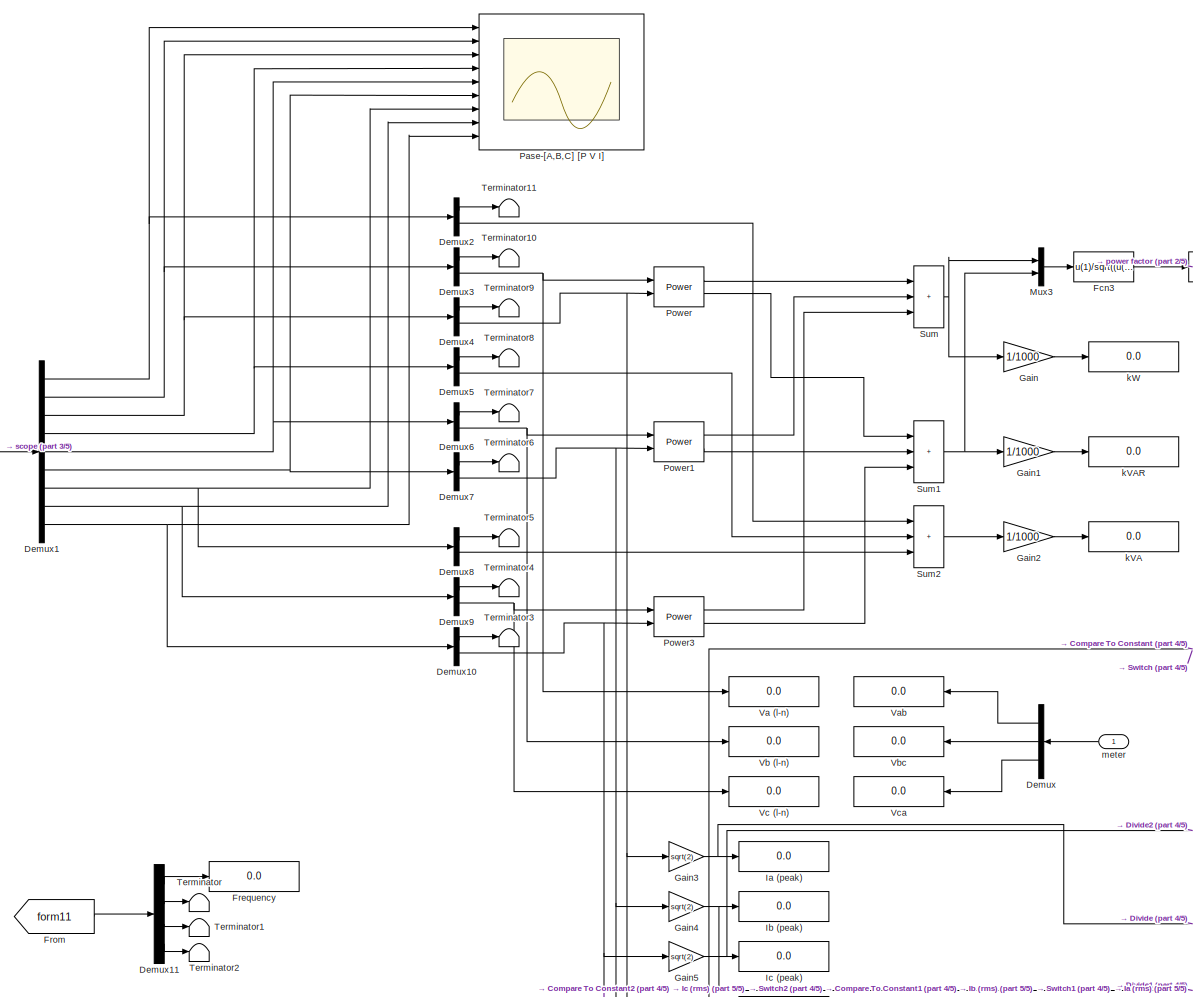
[diagram: Pacific Power Display - part 1/5, left side, full height]
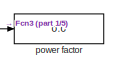
[diagram: Pacific Power Display - part 2/5, top center region]
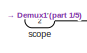
[diagram: Pacific Power Display - part 3/5, middle left region]
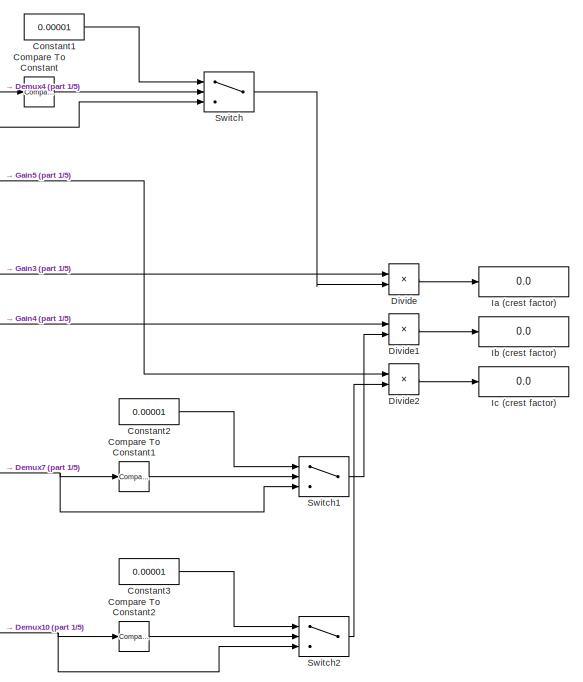
[diagram: Pacific Power Display - part 4/5, bottom right region]
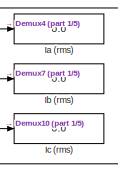
[diagram: Pacific Power Display - part 5/5, bottom center region]
BLOCK [SubSystem] Pacific Power Display
  Ports = [2]
  RequestExecContextInheritance = off
BLOCK [Reference] Pacific Power Display/Compare To Constant  REF=simulink/Logic and Bit
Operations/Compare
To Constant
  Ports = [1, 1]
  SourceBlock = simulink/Logic and Bit\nOperations/Compare\nTo Constant
  SourceProductBaseCode = SL
  SourceType = Compare To Constant
BLOCK [Reference] Pacific Power Display/Compare To Constant1  REF=simulink/Logic and Bit
Operations/Compare
To Constant
  Ports = [1, 1]
  SourceBlock = simulink/Logic and Bit\nOperations/Compare\nTo Constant
  SourceProductBaseCode = SL
  SourceType = Compare To Constant
BLOCK [Reference] Pacific Power Display/Compare To Constant2  REF=simulink/Logic and Bit
Operations/Compare
To Constant
  Ports = [1, 1]
  SourceBlock = simulink/Logic and Bit\nOperations/Compare\nTo Constant
  SourceProductBaseCode = SL
  SourceType = Compare To Constant
BLOCK [Constant] Pacific Power Display/Constant1
  Value = 0.00001
BLOCK [Constant] Pacific Power Display/Constant2
  Value = 0.00001
BLOCK [Constant] Pacific Power Display/Constant3
  Value = 0.00001
BLOCK [Demux] Pacific Power Display/Demux
  Outputs = 3
  Ports = [1, 3]
BLOCK [Demux] Pacific Power Display/Demux1
  Outputs = 9
  Ports = [1, 9]
BLOCK [Demux] Pacific Power Display/Demux10
  Outputs = 2
  Ports = [1, 2]
BLOCK [Demux] Pacific Power Display/Demux11
  Ports = [1, 4]
BLOCK [Demux] Pacific Power Display/Demux2
  Outputs = 2
  Ports = [1, 2]
BLOCK [Demux] Pacific Power Display/Demux3
  Outputs = 2
  Ports = [1, 2]
BLOCK [Demux] Pacific Power Display/Demux4
  Outputs = 2
  Ports = [1, 2]
BLOCK [Demux] Pacific Power Display/Demux5
  Outputs = 2
  Ports = [1, 2]
BLOCK [Demux] Pacific Power Display/Demux6
  Outputs = 2
  Ports = [1, 2]
BLOCK [Demux] Pacific Power Display/Demux7
  Outputs = 2
  Ports = [1, 2]
BLOCK [Demux] Pacific Power Display/Demux8
  Outputs = 2
  Ports = [1, 2]
BLOCK [Demux] Pacific Power Display/Demux9
  Outputs = 2
  Ports = [1, 2]
BLOCK [Product] Pacific Power Display/Divide
  Inputs = */
  Ports = [2, 1]
BLOCK [Product] Pacific Power Display/Divide1
  Inputs = */
  Ports = [2, 1]
BLOCK [Product] Pacific Power Display/Divide2
  Inputs = */
  Ports = [2, 1]
BLOCK [Fcn] Pacific Power Display/Fcn3
  Expr = u(1)/sqrt((u(1))^2+(u(2))^2)
BLOCK [Display] Pacific Power Display/Frequency
  Decimation = 1
  Ports = [1]
BLOCK [From] Pacific Power Display/From
  GotoTag = form11
  TagVisibility = global
BLOCK [Gain] Pacific Power Display/Gain
  Gain = 1/1000
BLOCK [Gain] Pacific Power Display/Gain1
  Gain = 1/1000
BLOCK [Gain] Pacific Power Display/Gain2
  Gain = 1/1000
BLOCK [Gain] Pacific Power Display/Gain3
  Gain = sqrt(2)
BLOCK [Gain] Pacific Power Display/Gain4
  Gain = sqrt(2)
BLOCK [Gain] Pacific Power Display/Gain5
  Gain = sqrt(2)
BLOCK [Display] Pacific Power Display/Ia (crest factor)
  Decimation = 3
  Ports = [1]
BLOCK [Display] Pacific Power Display/Ia (peak)
  Decimation = 3
  Ports = [1]
BLOCK [Display] Pacific Power Display/Ia (rms)
  Decimation = 3
  Ports = [1]
BLOCK [Display] Pacific Power Display/Ib (crest factor)
  Decimation = 3
  Ports = [1]
BLOCK [Display] Pacific Power Display/Ib (peak)
  Decimation = 3
  Ports = [1]
BLOCK [Display] Pacific Power Display/Ib (rms)
  Decimation = 3
  Ports = [1]
BLOCK [Display] Pacific Power Display/Ic (crest factor)
  Decimation = 3
  Ports = [1]
BLOCK [Display] Pacific Power Display/Ic (peak)
  Decimation = 3
  Ports = [1]
BLOCK [Display] Pacific Power Display/Ic (rms)
  Decimation = 3
  Ports = [1]
BLOCK [Mux] Pacific Power Display/Mux3
  DisplayOption = bar
  Inputs = 2
  Ports = [2, 1]
BLOCK [Scope] Pacific Power Display/Pase-[A,B,C] [P V I]
  Floating = off
  NumInputPorts = 9
  Ports = [9]
  ScopeSpecificationString = Simulink.scopes.TimeScopeBlockCfg('CurrentConfiguration', extmgr.ConfigurationSet(extmgr.Configuration('Core','General UI',true,'FigureColor',[1 1 1]),extmgr.Configuration('Core','Source UI',true),extmgr.Configuration('Sources','WiredSimulink',true,'DataLoggingVariableName','ScopeData1'),extmgr.Configuration('Visuals','Time Domain',true,'PlotType','Line','SerializedDisplays',{struct('MinYLimReal',...<+9962ch>
BLOCK [Reference] Pacific Power Display/Power  REF=powerlib_meascontrol/Measurements/Power
  Ports = [2, 2]
  SourceBlock = powerlib_meascontrol/Measurements/Power
  SourceProductBaseCode = PS
  SourceType = Power
BLOCK [Reference] Pacific Power Display/Power1  REF=powerlib_meascontrol/Measurements/Power
  Ports = [2, 2]
  SourceBlock = powerlib_meascontrol/Measurements/Power
  SourceProductBaseCode = PS
  SourceType = Power
BLOCK [Reference] Pacific Power Display/Power3  REF=powerlib_meascontrol/Measurements/Power
  Ports = [2, 2]
  SourceBlock = powerlib_meascontrol/Measurements/Power
  SourceProductBaseCode = PS
  SourceType = Power
BLOCK [Sum] Pacific Power Display/Sum
  IconShape = rectangular
  Inputs = +++
  Ports = [3, 1]
BLOCK [Sum] Pacific Power Display/Sum1
  IconShape = rectangular
  Inputs = +++
  Ports = [3, 1]
BLOCK [Sum] Pacific Power Display/Sum2
  IconShape = rectangular
  Inputs = +++
  Ports = [3, 1]
BLOCK [Switch] Pacific Power Display/Switch
  Criteria = u2 > Threshold
  InputSameDT = off
  NameLocation = top
  SaturateOnIntegerOverflow = off
  ZeroCross = off
BLOCK [Switch] Pacific Power Display/Switch1
  Criteria = u2 > Threshold
  InputSameDT = off
  NameLocation = top
  SaturateOnIntegerOverflow = off
  ZeroCross = off
BLOCK [Switch] Pacific Power Display/Switch2
  Criteria = u2 > Threshold
  InputSameDT = off
  NameLocation = top
  SaturateOnIntegerOverflow = off
  ZeroCross = off
BLOCK [Terminator] Pacific Power Display/Terminator
BLOCK [Terminator] Pacific Power Display/Terminator1
BLOCK [Terminator] Pacific Power Display/Terminator10
BLOCK [Terminator] Pacific Power Display/Terminator11
BLOCK [Terminator] Pacific Power Display/Terminator2
BLOCK [Terminator] Pacific Power Display/Terminator3
BLOCK [Terminator] Pacific Power Display/Terminator4
BLOCK [Terminator] Pacific Power Display/Terminator5
BLOCK [Terminator] Pacific Power Display/Terminator6
BLOCK [Terminator] Pacific Power Display/Terminator7
BLOCK [Terminator] Pacific Power Display/Terminator8
BLOCK [Terminator] Pacific Power Display/Terminator9
BLOCK [Display] Pacific Power Display/Va (l-n)
  Decimation = 3
  Ports = [1]
BLOCK [Display] Pacific Power Display/Vab
  Decimation = 3
  Ports = [1]
BLOCK [Display] Pacific Power Display/Vb (l-n)
  Decimation = 3
  Ports = [1]
BLOCK [Display] Pacific Power Display/Vbc
  Decimation = 3
  Ports = [1]
BLOCK [Display] Pacific Power Display/Vc (l-n)
  Decimation = 3
  Ports = [1]
BLOCK [Display] Pacific Power Display/Vca
  Decimation = 3
  Ports = [1]
BLOCK [Display] Pacific Power Display/kVA
  Decimation = 3
  Ports = [1]
BLOCK [Display] Pacific Power Display/kVAR
  Decimation = 3
  Ports = [1]
BLOCK [Display] Pacific Power Display/kW
  Decimation = 3
  Ports = [1]
BLOCK [Inport] Pacific Power Display/meter
BLOCK [Display] Pacific Power Display/power factor
  Decimation = 1
  Ports = [1]
BLOCK [Inport] Pacific Power Display/scope
  Port = 2
BLOCK [Reference] Resistor1  REF=fl_lib/Electrical/Electrical Elements/Resistor
  Ports = [0, 0, 0, 0, 0, 1, 1]
  SourceBlock = fl_lib/Electrical/Electrical Elements/Resistor
  SourceProductBaseCode = SS
  SourceType = Resistor
BLOCK [Reference] Resistor2  REF=fl_lib/Electrical/Electrical Elements/Resistor
  Ports = [0, 0, 0, 0, 0, 1, 1]
  SourceBlock = fl_lib/Electrical/Electrical Elements/Resistor
  SourceProductBaseCode = SS
  SourceType = Resistor
BLOCK [Reference] Resistor3  REF=fl_lib/Electrical/Electrical Elements/Resistor
  Ports = [0, 0, 0, 0, 0, 1, 1]
  SourceBlock = fl_lib/Electrical/Electrical Elements/Resistor
  SourceProductBaseCode = SS
  SourceType = Resistor
BLOCK [Reference] Solver Configuration  REF=nesl_utility/Solver
Configuration
  Ports = [0, 0, 0, 0, 0, 0, 1]
  SourceBlock = nesl_utility/Solver\nConfiguration
  SourceProductBaseCode = SS
  SourceType = Solver\nConfiguration
BLOCK [SubSystem] UPC-32
  Ports = [0, 4]
  RequestExecContextInheritance = off
BLOCK [Sum] UPC-32/Add
  IconShape = rectangular
  Ports = [2, 1]
BLOCK [Constant] UPC-32/Constant
  Value = Iprt
BLOCK [Constant] UPC-32/Constant1
  Value = Iprtlim
BLOCK [Constant] UPC-32/Constant2
  Value = Tiprt
BLOCK [Constant] UPC-32/Constant3
  Value = Zout
BLOCK [SubSystem] UPC-32/Default: 0 inputs
  NameLocation = right
  Ports = [0, 1]
  RequestExecContextInheritance = off
BLOCK [Constant] UPC-32/Default: 0 inputs/form
  Value = [0,0,0,0,0]
BLOCK [Outport] UPC-32/Default: 0 inputs/form[1 2 3]
  VectorParamsAs1DForOutWhenUnconnected = off
BLOCK [Display] UPC-32/Display
  Decimation = 1
  Ports = [1]
BLOCK [Gain] UPC-32/Gain
  Gain = 10
BLOCK [Goto] UPC-32/Goto
  GotoTag = form11
  TagVisibility = global
BLOCK [Goto] UPC-32/Goto1
  GotoTag = form12
  TagVisibility = global
BLOCK [Goto] UPC-32/Goto2
  GotoTag = form13
  TagVisibility = global
BLOCK [Goto] UPC-32/Goto3
  GotoTag = form21
  TagVisibility = global
BLOCK [Goto] UPC-32/Goto4
  GotoTag = form22
  TagVisibility = global
BLOCK [Goto] UPC-32/Goto5
  GotoTag = form23
  TagVisibility = global
BLOCK [Outport] UPC-32/I_prt
  Port = 3
  VectorParamsAs1DForOutWhenUnconnected = off
BLOCK [MultiPortSwitch] UPC-32/Multiport Switch3
  DataPortForDefault = Additional data port
  DataPortIndices = {11,12,13,21,22,23}
  DataPortOrder = Specify indices
  DiagnosticForDefault = None
  InputSameDT = off
  Inputs = 13
  Ports = [8, 1]
  SaturateOnIntegerOverflow = off
BLOCK [Mux] UPC-32/Mux
  DisplayOption = bar
  Inputs = 3
  Ports = [3, 1]
BLOCK [Outport] UPC-32/Z_out
  Port = 4
  VectorParamsAs1DForOutWhenUnconnected = off
BLOCK [Outport] UPC-32/[P,V,I]
  Port = 2
  VectorParamsAs1DForOutWhenUnconnected = off
BLOCK [Constant] UPC-32/form
  Value = form_sel
BLOCK [SubSystem] UPC-32/form1_dc (11)
  Ports = [0, 2]
  RequestExecContextInheritance = off
BLOCK [Constant] UPC-32/form1_dc (11)/Angle-1
  Value = 0
BLOCK [Outport] UPC-32/form1_dc (11)/F [Angles-1,2,3]
  Port = 2
  VectorParamsAs1DForOutWhenUnconnected = off
BLOCK [Constant] UPC-32/form1_dc (11)/Frequency-1
  Value = f
BLOCK [Mux] UPC-32/form1_dc (11)/Mux3
  DisplayOption = bar
  Inputs = 3
  Ports = [3, 1]
BLOCK [Mux] UPC-32/form1_dc (11)/Mux4
  DisplayOption = bar
  Ports = [4, 1]
BLOCK [Outport] UPC-32/form1_dc (11)/form1_dc [P,V,I]
  VectorParamsAs1DForOutWhenUnconnected = off
BLOCK [Constant] UPC-32/form1_dc (11)/form1_dc current
  Value = Im11
BLOCK [Constant] UPC-32/form1_dc (11)/form1_dc power (VA)
  Value = 6000
BLOCK [Constant] UPC-32/form1_dc (11)/form1_dc voltage
  Value = [Vm11,0,0]
BLOCK [SubSystem] UPC-32/form1_t (21)
  Ports = [0, 2]
  RequestExecContextInheritance = off
BLOCK [Constant] UPC-32/form1_t (21)/Angle-1
  Value = 0
BLOCK [Outport] UPC-32/form1_t (21)/F [Angles-1,2,3]
  Port = 2
  VectorParamsAs1DForOutWhenUnconnected = off
BLOCK [Constant] UPC-32/form1_t (21)/Frequency-1
  Value = f
BLOCK [Mux] UPC-32/form1_t (21)/Mux3
  DisplayOption = bar
  Inputs = 3
  Ports = [3, 1]
BLOCK [Mux] UPC-32/form1_t (21)/Mux4
  DisplayOption = bar
  Ports = [4, 1]
BLOCK [Outport] UPC-32/form1_t (21)/form1_t [P,V,I]
  VectorParamsAs1DForOutWhenUnconnected = off
BLOCK [Constant] UPC-32/form1_t (21)/form1_t current
  Value = Im21
BLOCK [Constant] UPC-32/form1_t (21)/form1_t power (VA)
  Value = 6000
BLOCK [Constant] UPC-32/form1_t (21)/form1_t voltage
  Value = [Vm21,0,0]
BLOCK [SubSystem] UPC-32/form2_dc (12)
  Ports = [0, 2]
  RequestExecContextInheritance = off
BLOCK [Constant] UPC-32/form2_dc (12)/Angle-1
  Value = 0
BLOCK [Constant] UPC-32/form2_dc (12)/Angle-2
  Value = 180
BLOCK [Outport] UPC-32/form2_dc (12)/F [Angles-1,2,3]
  Port = 2
  VectorParamsAs1DForOutWhenUnconnected = off
BLOCK [Constant] UPC-32/form2_dc (12)/Frequency-1
  Value = f
BLOCK [Mux] UPC-32/form2_dc (12)/Mux3
  DisplayOption = bar
  Inputs = 3
  Ports = [3, 1]
BLOCK [Mux] UPC-32/form2_dc (12)/Mux4
  DisplayOption = bar
  Ports = [4, 1]
BLOCK [Outport] UPC-32/form2_dc (12)/form2_dc [P,V,I]
  VectorParamsAs1DForOutWhenUnconnected = off
BLOCK [Constant] UPC-32/form2_dc (12)/form2_dc current
  Value = Im12
BLOCK [Constant] UPC-32/form2_dc (12)/form2_dc power (VA)
  Value = 4500
BLOCK [Constant] UPC-32/form2_dc (12)/form2_dc voltage
  Value = [Vm12/2,Vm12/2,0]
BLOCK [SubSystem] UPC-32/form2_t (22)
  Ports = [0, 2]
  RequestExecContextInheritance = off
BLOCK [Constant] UPC-32/form2_t (22)/Angle-1
  Value = 0
BLOCK [Constant] UPC-32/form2_t (22)/Angle-2
  Value = 180
BLOCK [Outport] UPC-32/form2_t (22)/F [Angles-1,2,3]
  Port = 2
  VectorParamsAs1DForOutWhenUnconnected = off
BLOCK [Constant] UPC-32/form2_t (22)/Frequency-1
  Value = f
BLOCK [Mux] UPC-32/form2_t (22)/Mux3
  DisplayOption = bar
  Inputs = 3
  Ports = [3, 1]
BLOCK [Mux] UPC-32/form2_t (22)/Mux4
  DisplayOption = bar
  Ports = [4, 1]
BLOCK [Outport] UPC-32/form2_t (22)/form2_t [P,V,I]
  VectorParamsAs1DForOutWhenUnconnected = off
BLOCK [Constant] UPC-32/form2_t (22)/form2_t current
  Value = Im22
BLOCK [Constant] UPC-32/form2_t (22)/form2_t power (VA)
  Value = 4500
BLOCK [Constant] UPC-32/form2_t (22)/form2_t voltage
  Value = [Vm22/2,Vm22/2,0]
BLOCK [SubSystem] UPC-32/form3_dc (13)
  Ports = [0, 2]
  RequestExecContextInheritance = off
BLOCK [Constant] UPC-32/form3_dc (13)/Angle-1
  Value = 0
BLOCK [Constant] UPC-32/form3_dc (13)/Angle-2
  Value = Ph13b
BLOCK [Constant] UPC-32/form3_dc (13)/Angle-3
  Value = Ph13c
BLOCK [Outport] UPC-32/form3_dc (13)/F [Angles-1,2,3]
  Port = 2
  VectorParamsAs1DForOutWhenUnconnected = off
BLOCK [Constant] UPC-32/form3_dc (13)/Frequency-1
  Value = f
BLOCK [Mux] UPC-32/form3_dc (13)/Mux3
  DisplayOption = bar
  Inputs = 3
  Ports = [3, 1]
BLOCK [Mux] UPC-32/form3_dc (13)/Mux4
  DisplayOption = bar
  Ports = [4, 1]
BLOCK [Outport] UPC-32/form3_dc (13)/form3_dc [P,V,I]
  VectorParamsAs1DForOutWhenUnconnected = off
BLOCK [Constant] UPC-32/form3_dc (13)/form3_dc current
  Value = Im13
BLOCK [Constant] UPC-32/form3_dc (13)/form3_dc power (VA)
  Value = 6000
BLOCK [Constant] UPC-32/form3_dc (13)/form3_dc voltage
  Value = [Vm13a,Vm13b,Vm13c]
BLOCK [SubSystem] UPC-32/form3_t (23)
  Ports = [0, 2]
  RequestExecContextInheritance = off
BLOCK [Constant] UPC-32/form3_t (23)/Angle-1
  Value = 0
BLOCK [Constant] UPC-32/form3_t (23)/Angle-2
  Value = Ph23b
BLOCK [Constant] UPC-32/form3_t (23)/Angle-3
  Value = Ph23c
BLOCK [Outport] UPC-32/form3_t (23)/F [Angles-1,2,3]
  Port = 2
  VectorParamsAs1DForOutWhenUnconnected = off
BLOCK [Constant] UPC-32/form3_t (23)/Frequency-1
  Value = f
BLOCK [Mux] UPC-32/form3_t (23)/Mux3
  DisplayOption = bar
  Inputs = 3
  Ports = [3, 1]
BLOCK [Mux] UPC-32/form3_t (23)/Mux4
  DisplayOption = bar
  Ports = [4, 1]
BLOCK [Outport] UPC-32/form3_t (23)/form3_t [P,V,I]
  VectorParamsAs1DForOutWhenUnconnected = off
BLOCK [Constant] UPC-32/form3_t (23)/form3_t current
  Value = Im23
BLOCK [Constant] UPC-32/form3_t (23)/form3_t power (VA)
  Value = 6000
BLOCK [Constant] UPC-32/form3_t (23)/form3_t voltage
  Value = [Vm23a,Vm23b,Vm23c]
BLOCK [Constant] UPC-32/mode
  Value = sel
BLOCK [Outport] UPC-32/op_form
  VectorParamsAs1DForOutWhenUnconnected = off
ANNOTATION Pacific Power 360-AMXT: Device neutral
ANNOTATION UPC-32: Freq & phases
LINE Pacific Power 360-AMXT/Constant1:1 -> Pacific Power 360-AMXT/power-2:3
LINE Pacific Power 360-AMXT/Constant2:1 -> Pacific Power 360-AMXT/power-3:3
LINE Pacific Power 360-AMXT/Constant:1 -> Pacific Power 360-AMXT/power-1:3
LINE Pacific Power 360-AMXT/From1:1 -> Pacific Power 360-AMXT/Mux1:2
LINE Pacific Power 360-AMXT/From2:1 -> Pacific Power 360-AMXT/Mux2:2
LINE Pacific Power 360-AMXT/From3:1 -> Pacific Power 360-AMXT/Mux3:2
LINE Pacific Power 360-AMXT/From4:1 -> Pacific Power 360-AMXT/Mux4:2
LINE Pacific Power 360-AMXT/From5:1 -> Pacific Power 360-AMXT/Mux5:2
LINE Pacific Power 360-AMXT/From6:1 -> Pacific Power 360-AMXT/Mux6:2
LINE Pacific Power 360-AMXT/From7:1 -> Pacific Power 360-AMXT/Mux7:2
LINE Pacific Power 360-AMXT/From8:1 -> Pacific Power 360-AMXT/Mux8:2
LINE Pacific Power 360-AMXT/From9:1 -> Pacific Power 360-AMXT/Mux9:2
LINE Pacific Power 360-AMXT/I_protection:1 -> Pacific Power 360-AMXT/Mux10:3
LINE Pacific Power 360-AMXT/Mux10:1 -> Pacific Power 360-AMXT/Terminator:1
LINE Pacific Power 360-AMXT/Mux11:1 -> Pacific Power 360-AMXT/2Meter:1
LINE Pacific Power 360-AMXT/Mux1:1 -> Pacific Power 360-AMXT/Mux:4
LINE Pacific Power 360-AMXT/Mux2:1 -> Pacific Power 360-AMXT/Mux:5
LINE Pacific Power 360-AMXT/Mux3:1 -> Pacific Power 360-AMXT/Mux:1
LINE Pacific Power 360-AMXT/Mux4:1 -> Pacific Power 360-AMXT/Mux:2
LINE Pacific Power 360-AMXT/Mux5:1 -> Pacific Power 360-AMXT/Mux:3
LINE Pacific Power 360-AMXT/Mux6:1 -> Pacific Power 360-AMXT/Mux:6
LINE Pacific Power 360-AMXT/Mux7:1 -> Pacific Power 360-AMXT/Mux:7
LINE Pacific Power 360-AMXT/Mux8:1 -> Pacific Power 360-AMXT/Mux:8
LINE Pacific Power 360-AMXT/Mux9:1 -> Pacific Power 360-AMXT/Mux:9
LINE Pacific Power 360-AMXT/Mux:1 -> Pacific Power 360-AMXT/2Scope:1
LINE Pacific Power 360-AMXT/PS-Simulink Converter1:1 -> Pacific Power 360-AMXT/RMS1:1
LINE Pacific Power 360-AMXT/PS-Simulink Converter2:1 -> Pacific Power 360-AMXT/RMS2:1
LINE Pacific Power 360-AMXT/PS-Simulink Converter:1 -> Pacific Power 360-AMXT/RMS:1
LINE Pacific Power 360-AMXT/RMS1:1 -> Pacific Power 360-AMXT/Mux11:2
LINE Pacific Power 360-AMXT/RMS2:1 -> Pacific Power 360-AMXT/Mux11:3
LINE Pacific Power 360-AMXT/RMS:1 -> Pacific Power 360-AMXT/Mux11:1
NET Pacific Power 360-AMXT/Zout:1 -> Pacific Power 360-AMXT/Mux10:4, Pacific Power 360-AMXT/power-1:4, Pacific Power 360-AMXT/power-2:4, Pacific Power 360-AMXT/power-3:4
NET Pacific Power 360-AMXT/[P,V,I]:1 -> Pacific Power 360-AMXT/Mux10:2, Pacific Power 360-AMXT/power-1:2, Pacific Power 360-AMXT/power-2:2, Pacific Power 360-AMXT/power-3:2
NET Pacific Power 360-AMXT/op_from:1 -> Pacific Power 360-AMXT/Mux10:1, Pacific Power 360-AMXT/power-1:1, Pacific Power 360-AMXT/power-2:1, Pacific Power 360-AMXT/power-3:1
LINE Pacific Power 360-AMXT/power-1/Constant4:1 -> Pacific Power 360-AMXT/power-1/Switch:3
LINE Pacific Power 360-AMXT/power-1/Constant:1 -> Pacific Power 360-AMXT/power-1/Logical Operator1:1
LINE Pacific Power 360-AMXT/power-1/I_prt:1 -> Pacific Power 360-AMXT/power-1/Logical Operator2:1
LINE Pacific Power 360-AMXT/power-1/Logical Operator1:1 -> Pacific Power 360-AMXT/power-1/Switch:2
LINE Pacific Power 360-AMXT/power-1/Logical Operator2:1 -> Pacific Power 360-AMXT/power-1/Logical Operator1:2
NET Pacific Power 360-AMXT/power-1/PS-Simulink Converter1:1 -> Pacific Power 360-AMXT/power-1/Pout:1, Pacific Power 360-AMXT/power-1/control_power-1:1
NET Pacific Power 360-AMXT/power-1/PS-Simulink Converter2:1 -> Pacific Power 360-AMXT/power-1/Iout:1, Pacific Power 360-AMXT/power-1/control_power-1:3
NET Pacific Power 360-AMXT/power-1/PS-Simulink Converter4:1 -> Pacific Power 360-AMXT/power-1/Vout:1, Pacific Power 360-AMXT/power-1/control_power-1:2
LINE Pacific Power 360-AMXT/power-1/Switch:1 -> Pacific Power 360-AMXT/power-1/Simulink-PS Converter:1
LINE Pacific Power 360-AMXT/power-1/Unit Delay:1 -> Pacific Power 360-AMXT/power-1/Switch:1
LINE Pacific Power 360-AMXT/power-1/Zout:1 -> Pacific Power 360-AMXT/power-1/Simulink-PS Converter1:1
LINE Pacific Power 360-AMXT/power-1/[P,V,I]:1 -> Pacific Power 360-AMXT/power-1/control_power-1:4
LINE Pacific Power 360-AMXT/power-1/control_power-1/All AC control/Clock2:1 -> Pacific Power 360-AMXT/power-1/control_power-1/All AC control/MATLAB Function2:1
LINE Pacific Power 360-AMXT/power-1/control_power-1/All AC control/Demux:1 -> Pacific Power 360-AMXT/power-1/control_power-1/All AC control/MATLAB Function2:3
LINE Pacific Power 360-AMXT/power-1/control_power-1/All AC control/Demux:2 -> Pacific Power 360-AMXT/power-1/control_power-1/All AC control/MATLAB Function2:4
LINE Pacific Power 360-AMXT/power-1/control_power-1/All AC control/Demux:3 -> Pacific Power 360-AMXT/power-1/control_power-1/All AC control/Terminator2:1
LINE Pacific Power 360-AMXT/power-1/control_power-1/All AC control/Demux:4 -> Pacific Power 360-AMXT/power-1/control_power-1/All AC control/Terminator3:1
LINE Pacific Power 360-AMXT/power-1/control_power-1/All AC control/F [Angles-1,2,3]:1 -> Pacific Power 360-AMXT/power-1/control_power-1/All AC control/Unit Delay3:1
LINE Pacific Power 360-AMXT/power-1/control_power-1/All AC control/I_set:1 -> Pacific Power 360-AMXT/power-1/control_power-1/All AC control/Unit Delay2:1
LINE Pacific Power 360-AMXT/power-1/control_power-1/All AC control/Iout:1 -> Pacific Power 360-AMXT/power-1/control_power-1/All AC control/Unit Delay4:1
LINE Pacific Power 360-AMXT/power-1/control_power-1/All AC control/MATLAB Function2:1 -> Pacific Power 360-AMXT/power-1/control_power-1/All AC control/Vin:1
NET Pacific Power 360-AMXT/power-1/control_power-1/All AC control/MATLAB Function:1 -> Pacific Power 360-AMXT/power-1/control_power-1/All AC control/MATLAB Function2:2, Pacific Power 360-AMXT/power-1/control_power-1/All AC control/Memory:1
LINE Pacific Power 360-AMXT/power-1/control_power-1/All AC control/Memory:1 -> Pacific Power 360-AMXT/power-1/control_power-1/All AC control/MATLAB Function:4
LINE Pacific Power 360-AMXT/power-1/control_power-1/All AC control/Mux:1 -> Pacific Power 360-AMXT/power-1/control_power-1/All AC control/rms_out:1
LINE Pacific Power 360-AMXT/power-1/control_power-1/All AC control/P_set:1 -> Pacific Power 360-AMXT/power-1/control_power-1/All AC control/Unit Delay:1
LINE Pacific Power 360-AMXT/power-1/control_power-1/All AC control/Pout:1 -> Pacific Power 360-AMXT/power-1/control_power-1/All AC control/Terminator:1
NET Pacific Power 360-AMXT/power-1/control_power-1/All AC control/Product:1 -> Pacific Power 360-AMXT/power-1/control_power-1/All AC control/Mux:1, Pacific Power 360-AMXT/power-1/control_power-1/All AC control/Sum:1
NET Pacific Power 360-AMXT/power-1/control_power-1/All AC control/RMS1:1 -> Pacific Power 360-AMXT/power-1/control_power-1/All AC control/Mux:2, Pacific Power 360-AMXT/power-1/control_power-1/All AC control/Product:2, Pacific Power 360-AMXT/power-1/control_power-1/All AC control/Sum2:1
NET Pacific Power 360-AMXT/power-1/control_power-1/All AC control/RMS2:1 -> Pacific Power 360-AMXT/power-1/control_power-1/All AC control/Mux:3, Pacific Power 360-AMXT/power-1/control_power-1/All AC control/Product:1, Pacific Power 360-AMXT/power-1/control_power-1/All AC control/Sum1:1
LINE Pacific Power 360-AMXT/power-1/control_power-1/All AC control/Sum1:1 -> Pacific Power 360-AMXT/power-1/control_power-1/All AC control/MATLAB Function:3
LINE Pacific Power 360-AMXT/power-1/control_power-1/All AC control/Sum2:1 -> Pacific Power 360-AMXT/power-1/control_power-1/All AC control/MATLAB Function:2
LINE Pacific Power 360-AMXT/power-1/control_power-1/All AC control/Sum:1 -> Pacific Power 360-AMXT/power-1/control_power-1/All AC control/MATLAB Function:1
LINE Pacific Power 360-AMXT/power-1/control_power-1/All AC control/Unit Delay1:1 -> Pacific Power 360-AMXT/power-1/control_power-1/All AC control/Sum2:2
LINE Pacific Power 360-AMXT/power-1/control_power-1/All AC control/Unit Delay2:1 -> Pacific Power 360-AMXT/power-1/control_power-1/All AC control/Sum1:2
LINE Pacific Power 360-AMXT/power-1/control_power-1/All AC control/Unit Delay3:1 -> Pacific Power 360-AMXT/power-1/control_power-1/All AC control/Demux:1
LINE Pacific Power 360-AMXT/power-1/control_power-1/All AC control/Unit Delay4:1 -> Pacific Power 360-AMXT/power-1/control_power-1/All AC control/RMS2:1
LINE Pacific Power 360-AMXT/power-1/control_power-1/All AC control/Unit Delay5:1 -> Pacific Power 360-AMXT/power-1/control_power-1/All AC control/RMS1:1
LINE Pacific Power 360-AMXT/power-1/control_power-1/All AC control/Unit Delay:1 -> Pacific Power 360-AMXT/power-1/control_power-1/All AC control/Sum:2
LINE Pacific Power 360-AMXT/power-1/control_power-1/All AC control/V_set:1 -> Pacific Power 360-AMXT/power-1/control_power-1/All AC control/Unit Delay1:1
LINE Pacific Power 360-AMXT/power-1/control_power-1/All AC control/Vout:1 -> Pacific Power 360-AMXT/power-1/control_power-1/All AC control/Unit Delay5:1
LINE Pacific Power 360-AMXT/power-1/control_power-1/All AC control:1 -> Pacific Power 360-AMXT/power-1/control_power-1/Vin:1
LINE Pacific Power 360-AMXT/power-1/control_power-1/All AC control:2 -> Pacific Power 360-AMXT/power-1/control_power-1/Demux2:1
LINE Pacific Power 360-AMXT/power-1/control_power-1/Compare To Constant12:1 -> Pacific Power 360-AMXT/power-1/control_power-1/Logical Operator1:2
LINE Pacific Power 360-AMXT/power-1/control_power-1/Compare To Constant13:1 -> Pacific Power 360-AMXT/power-1/control_power-1/Logical Operator1:1
LINE Pacific Power 360-AMXT/power-1/control_power-1/Compare To Constant1:1 -> Pacific Power 360-AMXT/power-1/control_power-1/Logical Operator1:4
LINE Pacific Power 360-AMXT/power-1/control_power-1/Compare To Constant2:1 -> Pacific Power 360-AMXT/power-1/control_power-1/Logical Operator1:3
LINE Pacific Power 360-AMXT/power-1/control_power-1/Compare To Constant3:1 -> Pacific Power 360-AMXT/power-1/control_power-1/Logical Operator1:6
LINE Pacific Power 360-AMXT/power-1/control_power-1/Compare To Constant4:1 -> Pacific Power 360-AMXT/power-1/control_power-1/Logical Operator1:5
LINE Pacific Power 360-AMXT/power-1/control_power-1/Constant1:1 -> Pacific Power 360-AMXT/power-1/control_power-1/Multiport Switch1:8
LINE Pacific Power 360-AMXT/power-1/control_power-1/Demux2:1 -> Pacific Power 360-AMXT/power-1/control_power-1/Goto3:1
LINE Pacific Power 360-AMXT/power-1/control_power-1/Demux2:2 -> Pacific Power 360-AMXT/power-1/control_power-1/Goto4:1
LINE Pacific Power 360-AMXT/power-1/control_power-1/Demux2:3 -> Pacific Power 360-AMXT/power-1/control_power-1/Goto5:1
LINE Pacific Power 360-AMXT/power-1/control_power-1/Demux:1 -> Pacific Power 360-AMXT/power-1/control_power-1/All AC control:4
LINE Pacific Power 360-AMXT/power-1/control_power-1/Demux:2 -> Pacific Power 360-AMXT/power-1/control_power-1/All AC control:5
LINE Pacific Power 360-AMXT/power-1/control_power-1/Demux:3 -> Pacific Power 360-AMXT/power-1/control_power-1/Terminator:1
LINE Pacific Power 360-AMXT/power-1/control_power-1/Demux:4 -> Pacific Power 360-AMXT/power-1/control_power-1/Terminator1:1
LINE Pacific Power 360-AMXT/power-1/control_power-1/Demux:5 -> Pacific Power 360-AMXT/power-1/control_power-1/All AC control:6
LINE Pacific Power 360-AMXT/power-1/control_power-1/From1:1 -> Pacific Power 360-AMXT/power-1/control_power-1/Multiport Switch1:3
LINE Pacific Power 360-AMXT/power-1/control_power-1/From2:1 -> Pacific Power 360-AMXT/power-1/control_power-1/Multiport Switch1:4
LINE Pacific Power 360-AMXT/power-1/control_power-1/From3:1 -> Pacific Power 360-AMXT/power-1/control_power-1/Multiport Switch1:5
LINE Pacific Power 360-AMXT/power-1/control_power-1/From4:1 -> Pacific Power 360-AMXT/power-1/control_power-1/Multiport Switch1:6
LINE Pacific Power 360-AMXT/power-1/control_power-1/From5:1 -> Pacific Power 360-AMXT/power-1/control_power-1/Multiport Switch1:7
LINE Pacific Power 360-AMXT/power-1/control_power-1/From:1 -> Pacific Power 360-AMXT/power-1/control_power-1/Multiport Switch1:2
LINE Pacific Power 360-AMXT/power-1/control_power-1/Iout:1 -> Pacific Power 360-AMXT/power-1/control_power-1/All AC control:3
LINE Pacific Power 360-AMXT/power-1/control_power-1/Logical Operator1:1 -> Pacific Power 360-AMXT/power-1/control_power-1/All AC control:enable
LINE Pacific Power 360-AMXT/power-1/control_power-1/Multiport Switch1:1 -> Pacific Power 360-AMXT/power-1/control_power-1/All AC control:7
LINE Pacific Power 360-AMXT/power-1/control_power-1/Pout:1 -> Pacific Power 360-AMXT/power-1/control_power-1/All AC control:1
LINE Pacific Power 360-AMXT/power-1/control_power-1/Vout:1 -> Pacific Power 360-AMXT/power-1/control_power-1/All AC control:2
LINE Pacific Power 360-AMXT/power-1/control_power-1/[P,V,I]:1 -> Pacific Power 360-AMXT/power-1/control_power-1/Demux:1
NET Pacific Power 360-AMXT/power-1/control_power-1/op_form:1 -> Pacific Power 360-AMXT/power-1/control_power-1/Compare To Constant12:1, Pacific Power 360-AMXT/power-1/control_power-1/Compare To Constant13:1, Pacific Power 360-AMXT/power-1/control_power-1/Compare To Constant1:1, Pacific Power 360-AMXT/power-1/control_power-1/Compare To Constant2:1, Pacific Power 360-AMXT/power-1/control_power-1/Compare To Constant3:1, Pacific Power 360-AMXT/power-1/control_power-1/Compare To Constant4:1, Pacific Power 360-AMXT/power-1/control_power-1/Multiport Switch1:1
LINE Pacific Power 360-AMXT/power-1/control_power-1:1 -> Pacific Power 360-AMXT/power-1/Unit Delay:1
LINE Pacific Power 360-AMXT/power-1/op_form:1 -> Pacific Power 360-AMXT/power-1/control_power-1:5
LINE Pacific Power 360-AMXT/power-1:1 -> Pacific Power 360-AMXT/Mux3:1
LINE Pacific Power 360-AMXT/power-1:2 -> Pacific Power 360-AMXT/Mux4:1
LINE Pacific Power 360-AMXT/power-1:3 -> Pacific Power 360-AMXT/Mux5:1
LINE Pacific Power 360-AMXT/power-2/Constant4:1 -> Pacific Power 360-AMXT/power-2/Switch:3
LINE Pacific Power 360-AMXT/power-2/Constant:1 -> Pacific Power 360-AMXT/power-2/Logical Operator1:1
LINE Pacific Power 360-AMXT/power-2/I_prt:1 -> Pacific Power 360-AMXT/power-2/Logical Operator2:1
LINE Pacific Power 360-AMXT/power-2/Logical Operator1:1 -> Pacific Power 360-AMXT/power-2/Switch:2
LINE Pacific Power 360-AMXT/power-2/Logical Operator2:1 -> Pacific Power 360-AMXT/power-2/Logical Operator1:2
NET Pacific Power 360-AMXT/power-2/PS-Simulink Converter1:1 -> Pacific Power 360-AMXT/power-2/Pout:1, Pacific Power 360-AMXT/power-2/control_power-2:1
NET Pacific Power 360-AMXT/power-2/PS-Simulink Converter2:1 -> Pacific Power 360-AMXT/power-2/Iout:1, Pacific Power 360-AMXT/power-2/control_power-2:3
NET Pacific Power 360-AMXT/power-2/PS-Simulink Converter4:1 -> Pacific Power 360-AMXT/power-2/Vout:1, Pacific Power 360-AMXT/power-2/control_power-2:2
LINE Pacific Power 360-AMXT/power-2/Switch:1 -> Pacific Power 360-AMXT/power-2/Simulink-PS Converter:1
LINE Pacific Power 360-AMXT/power-2/Unit Delay:1 -> Pacific Power 360-AMXT/power-2/Switch:1
LINE Pacific Power 360-AMXT/power-2/Zout:1 -> Pacific Power 360-AMXT/power-2/Simulink-PS Converter1:1
LINE Pacific Power 360-AMXT/power-2/[P,V,I]:1 -> Pacific Power 360-AMXT/power-2/control_power-2:4
LINE Pacific Power 360-AMXT/power-2/control_power-2/All AC control/Clock2:1 -> Pacific Power 360-AMXT/power-2/control_power-2/All AC control/MATLAB Function2:1
LINE Pacific Power 360-AMXT/power-2/control_power-2/All AC control/Demux:1 -> Pacific Power 360-AMXT/power-2/control_power-2/All AC control/MATLAB Function2:3
LINE Pacific Power 360-AMXT/power-2/control_power-2/All AC control/Demux:2 -> Pacific Power 360-AMXT/power-2/control_power-2/All AC control/Terminator2:1
LINE Pacific Power 360-AMXT/power-2/control_power-2/All AC control/Demux:3 -> Pacific Power 360-AMXT/power-2/control_power-2/All AC control/MATLAB Function2:4
LINE Pacific Power 360-AMXT/power-2/control_power-2/All AC control/Demux:4 -> Pacific Power 360-AMXT/power-2/control_power-2/All AC control/Terminator3:1
LINE Pacific Power 360-AMXT/power-2/control_power-2/All AC control/F [Angles-1,2,3]:1 -> Pacific Power 360-AMXT/power-2/control_power-2/All AC control/Unit Delay:1
LINE Pacific Power 360-AMXT/power-2/control_power-2/All AC control/I_set:1 -> Pacific Power 360-AMXT/power-2/control_power-2/All AC control/Unit Delay3:1
LINE Pacific Power 360-AMXT/power-2/control_power-2/All AC control/Iout:1 -> Pacific Power 360-AMXT/power-2/control_power-2/All AC control/Unit Delay4:1
LINE Pacific Power 360-AMXT/power-2/control_power-2/All AC control/MATLAB Function2:1 -> Pacific Power 360-AMXT/power-2/control_power-2/All AC control/Vin:1
NET Pacific Power 360-AMXT/power-2/control_power-2/All AC control/MATLAB Function:1 -> Pacific Power 360-AMXT/power-2/control_power-2/All AC control/MATLAB Function2:2, Pacific Power 360-AMXT/power-2/control_power-2/All AC control/Memory:1
LINE Pacific Power 360-AMXT/power-2/control_power-2/All AC control/Memory:1 -> Pacific Power 360-AMXT/power-2/control_power-2/All AC control/MATLAB Function:4
LINE Pacific Power 360-AMXT/power-2/control_power-2/All AC control/Mux:1 -> Pacific Power 360-AMXT/power-2/control_power-2/All AC control/rms_out:1
LINE Pacific Power 360-AMXT/power-2/control_power-2/All AC control/P_set:1 -> Pacific Power 360-AMXT/power-2/control_power-2/All AC control/Unit Delay1:1
LINE Pacific Power 360-AMXT/power-2/control_power-2/All AC control/Pout:1 -> Pacific Power 360-AMXT/power-2/control_power-2/All AC control/Terminator:1
NET Pacific Power 360-AMXT/power-2/control_power-2/All AC control/Product:1 -> Pacific Power 360-AMXT/power-2/control_power-2/All AC control/Mux:1, Pacific Power 360-AMXT/power-2/control_power-2/All AC control/Sum:1
NET Pacific Power 360-AMXT/power-2/control_power-2/All AC control/RMS1:1 -> Pacific Power 360-AMXT/power-2/control_power-2/All AC control/Mux:2, Pacific Power 360-AMXT/power-2/control_power-2/All AC control/Product:2, Pacific Power 360-AMXT/power-2/control_power-2/All AC control/Sum2:1
NET Pacific Power 360-AMXT/power-2/control_power-2/All AC control/RMS2:1 -> Pacific Power 360-AMXT/power-2/control_power-2/All AC control/Mux:3, Pacific Power 360-AMXT/power-2/control_power-2/All AC control/Product:1, Pacific Power 360-AMXT/power-2/control_power-2/All AC control/Sum1:1
LINE Pacific Power 360-AMXT/power-2/control_power-2/All AC control/Sum1:1 -> Pacific Power 360-AMXT/power-2/control_power-2/All AC control/MATLAB Function:3
LINE Pacific Power 360-AMXT/power-2/control_power-2/All AC control/Sum2:1 -> Pacific Power 360-AMXT/power-2/control_power-2/All AC control/MATLAB Function:2
LINE Pacific Power 360-AMXT/power-2/control_power-2/All AC control/Sum:1 -> Pacific Power 360-AMXT/power-2/control_power-2/All AC control/MATLAB Function:1
LINE Pacific Power 360-AMXT/power-2/control_power-2/All AC control/Unit Delay1:1 -> Pacific Power 360-AMXT/power-2/control_power-2/All AC control/Sum:2
LINE Pacific Power 360-AMXT/power-2/control_power-2/All AC control/Unit Delay2:1 -> Pacific Power 360-AMXT/power-2/control_power-2/All AC control/Sum2:2
LINE Pacific Power 360-AMXT/power-2/control_power-2/All AC control/Unit Delay3:1 -> Pacific Power 360-AMXT/power-2/control_power-2/All AC control/Sum1:2
LINE Pacific Power 360-AMXT/power-2/control_power-2/All AC control/Unit Delay4:1 -> Pacific Power 360-AMXT/power-2/control_power-2/All AC control/RMS2:1
LINE Pacific Power 360-AMXT/power-2/control_power-2/All AC control/Unit Delay5:1 -> Pacific Power 360-AMXT/power-2/control_power-2/All AC control/RMS1:1
LINE Pacific Power 360-AMXT/power-2/control_power-2/All AC control/Unit Delay:1 -> Pacific Power 360-AMXT/power-2/control_power-2/All AC control/Demux:1
LINE Pacific Power 360-AMXT/power-2/control_power-2/All AC control/V_set:1 -> Pacific Power 360-AMXT/power-2/control_power-2/All AC control/Unit Delay2:1
LINE Pacific Power 360-AMXT/power-2/control_power-2/All AC control/Vout:1 -> Pacific Power 360-AMXT/power-2/control_power-2/All AC control/Unit Delay5:1
LINE Pacific Power 360-AMXT/power-2/control_power-2/All AC control:1 -> Pacific Power 360-AMXT/power-2/control_power-2/Vin:1
LINE Pacific Power 360-AMXT/power-2/control_power-2/All AC control:2 -> Pacific Power 360-AMXT/power-2/control_power-2/Demux2:1
LINE Pacific Power 360-AMXT/power-2/control_power-2/Compare To Constant12:1 -> Pacific Power 360-AMXT/power-2/control_power-2/Logical Operator1:1
LINE Pacific Power 360-AMXT/power-2/control_power-2/Compare To Constant2:1 -> Pacific Power 360-AMXT/power-2/control_power-2/Logical Operator1:2
LINE Pacific Power 360-AMXT/power-2/control_power-2/Compare To Constant3:1 -> Pacific Power 360-AMXT/power-2/control_power-2/Logical Operator1:4
LINE Pacific Power 360-AMXT/power-2/control_power-2/Compare To Constant4:1 -> Pacific Power 360-AMXT/power-2/control_power-2/Logical Operator1:3
LINE Pacific Power 360-AMXT/power-2/control_power-2/Constant1:1 -> Pacific Power 360-AMXT/power-2/control_power-2/Multiport Switch1:6
LINE Pacific Power 360-AMXT/power-2/control_power-2/Demux2:1 -> Pacific Power 360-AMXT/power-2/control_power-2/Goto3:1
LINE Pacific Power 360-AMXT/power-2/control_power-2/Demux2:2 -> Pacific Power 360-AMXT/power-2/control_power-2/Goto4:1
LINE Pacific Power 360-AMXT/power-2/control_power-2/Demux2:3 -> Pacific Power 360-AMXT/power-2/control_power-2/Goto5:1
LINE Pacific Power 360-AMXT/power-2/control_power-2/Demux:1 -> Pacific Power 360-AMXT/power-2/control_power-2/All AC control:4
LINE Pacific Power 360-AMXT/power-2/control_power-2/Demux:2 -> Pacific Power 360-AMXT/power-2/control_power-2/Terminator:1
LINE Pacific Power 360-AMXT/power-2/control_power-2/Demux:3 -> Pacific Power 360-AMXT/power-2/control_power-2/All AC control:5
LINE Pacific Power 360-AMXT/power-2/control_power-2/Demux:4 -> Pacific Power 360-AMXT/power-2/control_power-2/Terminator1:1
LINE Pacific Power 360-AMXT/power-2/control_power-2/Demux:5 -> Pacific Power 360-AMXT/power-2/control_power-2/All AC control:6
LINE Pacific Power 360-AMXT/power-2/control_power-2/From1:1 -> Pacific Power 360-AMXT/power-2/control_power-2/Multiport Switch1:2
LINE Pacific Power 360-AMXT/power-2/control_power-2/From2:1 -> Pacific Power 360-AMXT/power-2/control_power-2/Multiport Switch1:3
LINE Pacific Power 360-AMXT/power-2/control_power-2/From4:1 -> Pacific Power 360-AMXT/power-2/control_power-2/Multiport Switch1:4
LINE Pacific Power 360-AMXT/power-2/control_power-2/From5:1 -> Pacific Power 360-AMXT/power-2/control_power-2/Multiport Switch1:5
LINE Pacific Power 360-AMXT/power-2/control_power-2/Iout:1 -> Pacific Power 360-AMXT/power-2/control_power-2/All AC control:3
LINE Pacific Power 360-AMXT/power-2/control_power-2/Logical Operator1:1 -> Pacific Power 360-AMXT/power-2/control_power-2/All AC control:enable
LINE Pacific Power 360-AMXT/power-2/control_power-2/Multiport Switch1:1 -> Pacific Power 360-AMXT/power-2/control_power-2/All AC control:7
LINE Pacific Power 360-AMXT/power-2/control_power-2/Pout:1 -> Pacific Power 360-AMXT/power-2/control_power-2/All AC control:1
LINE Pacific Power 360-AMXT/power-2/control_power-2/Vout:1 -> Pacific Power 360-AMXT/power-2/control_power-2/All AC control:2
LINE Pacific Power 360-AMXT/power-2/control_power-2/[P,V,I]:1 -> Pacific Power 360-AMXT/power-2/control_power-2/Demux:1
NET Pacific Power 360-AMXT/power-2/control_power-2/op_form:1 -> Pacific Power 360-AMXT/power-2/control_power-2/Compare To Constant12:1, Pacific Power 360-AMXT/power-2/control_power-2/Compare To Constant2:1, Pacific Power 360-AMXT/power-2/control_power-2/Compare To Constant3:1, Pacific Power 360-AMXT/power-2/control_power-2/Compare To Constant4:1, Pacific Power 360-AMXT/power-2/control_power-2/Multiport Switch1:1
LINE Pacific Power 360-AMXT/power-2/control_power-2:1 -> Pacific Power 360-AMXT/power-2/Unit Delay:1
LINE Pacific Power 360-AMXT/power-2/op_form:1 -> Pacific Power 360-AMXT/power-2/control_power-2:5
LINE Pacific Power 360-AMXT/power-2:1 -> Pacific Power 360-AMXT/Mux1:1
LINE Pacific Power 360-AMXT/power-2:2 -> Pacific Power 360-AMXT/Mux2:1
LINE Pacific Power 360-AMXT/power-2:3 -> Pacific Power 360-AMXT/Mux6:1
LINE Pacific Power 360-AMXT/power-3/Constant4:1 -> Pacific Power 360-AMXT/power-3/Switch:3
LINE Pacific Power 360-AMXT/power-3/Constant:1 -> Pacific Power 360-AMXT/power-3/Logical Operator1:1
LINE Pacific Power 360-AMXT/power-3/I_prt:1 -> Pacific Power 360-AMXT/power-3/Logical Operator2:1
LINE Pacific Power 360-AMXT/power-3/Logical Operator1:1 -> Pacific Power 360-AMXT/power-3/Switch:2
LINE Pacific Power 360-AMXT/power-3/Logical Operator2:1 -> Pacific Power 360-AMXT/power-3/Logical Operator1:2
NET Pacific Power 360-AMXT/power-3/PS-Simulink Converter1:1 -> Pacific Power 360-AMXT/power-3/Pout:1, Pacific Power 360-AMXT/power-3/control_power-3:1
NET Pacific Power 360-AMXT/power-3/PS-Simulink Converter2:1 -> Pacific Power 360-AMXT/power-3/Iout:1, Pacific Power 360-AMXT/power-3/control_power-3:3
NET Pacific Power 360-AMXT/power-3/PS-Simulink Converter4:1 -> Pacific Power 360-AMXT/power-3/Vout:1, Pacific Power 360-AMXT/power-3/control_power-3:2
LINE Pacific Power 360-AMXT/power-3/Switch:1 -> Pacific Power 360-AMXT/power-3/Simulink-PS Converter:1
LINE Pacific Power 360-AMXT/power-3/Unit Delay:1 -> Pacific Power 360-AMXT/power-3/Switch:1
LINE Pacific Power 360-AMXT/power-3/Zout:1 -> Pacific Power 360-AMXT/power-3/Simulink-PS Converter1:1
LINE Pacific Power 360-AMXT/power-3/[P,V,I]:1 -> Pacific Power 360-AMXT/power-3/control_power-3:4
LINE Pacific Power 360-AMXT/power-3/control_power-3/Compare To Constant2:1 -> Pacific Power 360-AMXT/power-3/control_power-3/Logical Operator1:1
LINE Pacific Power 360-AMXT/power-3/control_power-3/Compare To Constant3:1 -> Pacific Power 360-AMXT/power-3/control_power-3/Logical Operator1:2
LINE Pacific Power 360-AMXT/power-3/control_power-3/Constant1:1 -> Pacific Power 360-AMXT/power-3/control_power-3/Multiport Switch1:4
LINE Pacific Power 360-AMXT/power-3/control_power-3/Demux2:1 -> Pacific Power 360-AMXT/power-3/control_power-3/Goto3:1
LINE Pacific Power 360-AMXT/power-3/control_power-3/Demux2:2 -> Pacific Power 360-AMXT/power-3/control_power-3/Goto4:1
LINE Pacific Power 360-AMXT/power-3/control_power-3/Demux2:3 -> Pacific Power 360-AMXT/power-3/control_power-3/Goto5:1
LINE Pacific Power 360-AMXT/power-3/control_power-3/Demux:1 -> Pacific Power 360-AMXT/power-3/control_power-3/conrol:4
LINE Pacific Power 360-AMXT/power-3/control_power-3/Demux:2 -> Pacific Power 360-AMXT/power-3/control_power-3/Terminator:1
LINE Pacific Power 360-AMXT/power-3/control_power-3/Demux:3 -> Pacific Power 360-AMXT/power-3/control_power-3/Terminator1:1
LINE Pacific Power 360-AMXT/power-3/control_power-3/Demux:4 -> Pacific Power 360-AMXT/power-3/control_power-3/conrol:5
LINE Pacific Power 360-AMXT/power-3/control_power-3/Demux:5 -> Pacific Power 360-AMXT/power-3/control_power-3/conrol:6
LINE Pacific Power 360-AMXT/power-3/control_power-3/From2:1 -> Pacific Power 360-AMXT/power-3/control_power-3/Multiport Switch1:2
LINE Pacific Power 360-AMXT/power-3/control_power-3/From5:1 -> Pacific Power 360-AMXT/power-3/control_power-3/Multiport Switch1:3
LINE Pacific Power 360-AMXT/power-3/control_power-3/Iout:1 -> Pacific Power 360-AMXT/power-3/control_power-3/conrol:3
LINE Pacific Power 360-AMXT/power-3/control_power-3/Logical Operator1:1 -> Pacific Power 360-AMXT/power-3/control_power-3/conrol:enable
LINE Pacific Power 360-AMXT/power-3/control_power-3/Multiport Switch1:1 -> Pacific Power 360-AMXT/power-3/control_power-3/conrol:7
LINE Pacific Power 360-AMXT/power-3/control_power-3/Pout:1 -> Pacific Power 360-AMXT/power-3/control_power-3/conrol:1
LINE Pacific Power 360-AMXT/power-3/control_power-3/Vout:1 -> Pacific Power 360-AMXT/power-3/control_power-3/conrol:2
LINE Pacific Power 360-AMXT/power-3/control_power-3/[P,V,I]:1 -> Pacific Power 360-AMXT/power-3/control_power-3/Demux:1
LINE Pacific Power 360-AMXT/power-3/control_power-3/conrol/Clock2:1 -> Pacific Power 360-AMXT/power-3/control_power-3/conrol/MATLAB Function2:1
LINE Pacific Power 360-AMXT/power-3/control_power-3/conrol/Demux:1 -> Pacific Power 360-AMXT/power-3/control_power-3/conrol/MATLAB Function2:3
LINE Pacific Power 360-AMXT/power-3/control_power-3/conrol/Demux:2 -> Pacific Power 360-AMXT/power-3/control_power-3/conrol/Terminator2:1
LINE Pacific Power 360-AMXT/power-3/control_power-3/conrol/Demux:3 -> Pacific Power 360-AMXT/power-3/control_power-3/conrol/Terminator3:1
LINE Pacific Power 360-AMXT/power-3/control_power-3/conrol/Demux:4 -> Pacific Power 360-AMXT/power-3/control_power-3/conrol/MATLAB Function2:4
LINE Pacific Power 360-AMXT/power-3/control_power-3/conrol/F [Angles-1,2,3]:1 -> Pacific Power 360-AMXT/power-3/control_power-3/conrol/Unit Delay3:1
LINE Pacific Power 360-AMXT/power-3/control_power-3/conrol/I_set:1 -> Pacific Power 360-AMXT/power-3/control_power-3/conrol/Unit Delay2:1
LINE Pacific Power 360-AMXT/power-3/control_power-3/conrol/Iout:1 -> Pacific Power 360-AMXT/power-3/control_power-3/conrol/Unit Delay4:1
LINE Pacific Power 360-AMXT/power-3/control_power-3/conrol/MATLAB Function2:1 -> Pacific Power 360-AMXT/power-3/control_power-3/conrol/Vin:1
NET Pacific Power 360-AMXT/power-3/control_power-3/conrol/MATLAB Function:1 -> Pacific Power 360-AMXT/power-3/control_power-3/conrol/MATLAB Function2:2, Pacific Power 360-AMXT/power-3/control_power-3/conrol/Memory:1
LINE Pacific Power 360-AMXT/power-3/control_power-3/conrol/Memory:1 -> Pacific Power 360-AMXT/power-3/control_power-3/conrol/MATLAB Function:4
LINE Pacific Power 360-AMXT/power-3/control_power-3/conrol/Mux:1 -> Pacific Power 360-AMXT/power-3/control_power-3/conrol/rms_out:1
LINE Pacific Power 360-AMXT/power-3/control_power-3/conrol/P_set:1 -> Pacific Power 360-AMXT/power-3/control_power-3/conrol/Unit Delay:1
LINE Pacific Power 360-AMXT/power-3/control_power-3/conrol/Pout:1 -> Pacific Power 360-AMXT/power-3/control_power-3/conrol/Terminator:1
NET Pacific Power 360-AMXT/power-3/control_power-3/conrol/Product:1 -> Pacific Power 360-AMXT/power-3/control_power-3/conrol/Mux:1, Pacific Power 360-AMXT/power-3/control_power-3/conrol/Sum:1
NET Pacific Power 360-AMXT/power-3/control_power-3/conrol/RMS1:1 -> Pacific Power 360-AMXT/power-3/control_power-3/conrol/Mux:2, Pacific Power 360-AMXT/power-3/control_power-3/conrol/Product:2, Pacific Power 360-AMXT/power-3/control_power-3/conrol/Sum2:1
NET Pacific Power 360-AMXT/power-3/control_power-3/conrol/RMS2:1 -> Pacific Power 360-AMXT/power-3/control_power-3/conrol/Mux:3, Pacific Power 360-AMXT/power-3/control_power-3/conrol/Product:1, Pacific Power 360-AMXT/power-3/control_power-3/conrol/Sum1:1
LINE Pacific Power 360-AMXT/power-3/control_power-3/conrol/Sum1:1 -> Pacific Power 360-AMXT/power-3/control_power-3/conrol/MATLAB Function:3
LINE Pacific Power 360-AMXT/power-3/control_power-3/conrol/Sum2:1 -> Pacific Power 360-AMXT/power-3/control_power-3/conrol/MATLAB Function:2
LINE Pacific Power 360-AMXT/power-3/control_power-3/conrol/Sum:1 -> Pacific Power 360-AMXT/power-3/control_power-3/conrol/MATLAB Function:1
LINE Pacific Power 360-AMXT/power-3/control_power-3/conrol/Unit Delay1:1 -> Pacific Power 360-AMXT/power-3/control_power-3/conrol/Sum2:2
LINE Pacific Power 360-AMXT/power-3/control_power-3/conrol/Unit Delay2:1 -> Pacific Power 360-AMXT/power-3/control_power-3/conrol/Sum1:2
LINE Pacific Power 360-AMXT/power-3/control_power-3/conrol/Unit Delay3:1 -> Pacific Power 360-AMXT/power-3/control_power-3/conrol/Demux:1
LINE Pacific Power 360-AMXT/power-3/control_power-3/conrol/Unit Delay4:1 -> Pacific Power 360-AMXT/power-3/control_power-3/conrol/RMS2:1
LINE Pacific Power 360-AMXT/power-3/control_power-3/conrol/Unit Delay5:1 -> Pacific Power 360-AMXT/power-3/control_power-3/conrol/RMS1:1
LINE Pacific Power 360-AMXT/power-3/control_power-3/conrol/Unit Delay:1 -> Pacific Power 360-AMXT/power-3/control_power-3/conrol/Sum:2
LINE Pacific Power 360-AMXT/power-3/control_power-3/conrol/V_set:1 -> Pacific Power 360-AMXT/power-3/control_power-3/conrol/Unit Delay1:1
LINE Pacific Power 360-AMXT/power-3/control_power-3/conrol/Vout:1 -> Pacific Power 360-AMXT/power-3/control_power-3/conrol/Unit Delay5:1
LINE Pacific Power 360-AMXT/power-3/control_power-3/conrol:1 -> Pacific Power 360-AMXT/power-3/control_power-3/Vin:1
LINE Pacific Power 360-AMXT/power-3/control_power-3/conrol:2 -> Pacific Power 360-AMXT/power-3/control_power-3/Demux2:1
NET Pacific Power 360-AMXT/power-3/control_power-3/op_form:1 -> Pacific Power 360-AMXT/power-3/control_power-3/Compare To Constant2:1, Pacific Power 360-AMXT/power-3/control_power-3/Compare To Constant3:1, Pacific Power 360-AMXT/power-3/control_power-3/Multiport Switch1:1
LINE Pacific Power 360-AMXT/power-3/control_power-3:1 -> Pacific Power 360-AMXT/power-3/Unit Delay:1
LINE Pacific Power 360-AMXT/power-3/op_form:1 -> Pacific Power 360-AMXT/power-3/control_power-3:5
LINE Pacific Power 360-AMXT/power-3:1 -> Pacific Power 360-AMXT/Mux7:1
LINE Pacific Power 360-AMXT/power-3:2 -> Pacific Power 360-AMXT/Mux8:1
LINE Pacific Power 360-AMXT/power-3:3 -> Pacific Power 360-AMXT/Mux9:1
LINE Pacific Power 360-AMXT:1 -> Pacific Power Display:1
LINE Pacific Power 360-AMXT:2 -> Pacific Power Display:2
LINE Pacific Power Display/Compare To Constant1:1 -> Pacific Power Display/Switch1:2
LINE Pacific Power Display/Compare To Constant2:1 -> Pacific Power Display/Switch2:2
LINE Pacific Power Display/Compare To Constant:1 -> Pacific Power Display/Switch:2
LINE Pacific Power Display/Constant1:1 -> Pacific Power Display/Switch:1
LINE Pacific Power Display/Constant2:1 -> Pacific Power Display/Switch1:1
LINE Pacific Power Display/Constant3:1 -> Pacific Power Display/Switch2:1
LINE Pacific Power Display/Demux10:1 -> Pacific Power Display/Terminator3:1
NET Pacific Power Display/Demux10:2 -> Pacific Power Display/Compare To Constant2:1, Pacific Power Display/Gain5:1, Pacific Power Display/Ic (rms):1, Pacific Power Display/Power3:2, Pacific Power Display/Switch2:3
LINE Pacific Power Display/Demux11:1 -> Pacific Power Display/Frequency:1
LINE Pacific Power Display/Demux11:2 -> Pacific Power Display/Terminator:1
LINE Pacific Power Display/Demux11:3 -> Pacific Power Display/Terminator1:1
LINE Pacific Power Display/Demux11:4 -> Pacific Power Display/Terminator2:1
NET Pacific Power Display/Demux1:1 -> Pacific Power Display/Demux2:1, Pacific Power Display/Pase-[A,B,C] [P V I]:1
NET Pacific Power Display/Demux1:2 -> Pacific Power Display/Demux3:1, Pacific Power Display/Pase-[A,B,C] [P V I]:2
NET Pacific Power Display/Demux1:3 -> Pacific Power Display/Demux4:1, Pacific Power Display/Pase-[A,B,C] [P V I]:3
NET Pacific Power Display/Demux1:4 -> Pacific Power Display/Demux5:1, Pacific Power Display/Pase-[A,B,C] [P V I]:4
NET Pacific Power Display/Demux1:5 -> Pacific Power Display/Demux6:1, Pacific Power Display/Pase-[A,B,C] [P V I]:5
NET Pacific Power Display/Demux1:6 -> Pacific Power Display/Demux7:1, Pacific Power Display/Pase-[A,B,C] [P V I]:6
NET Pacific Power Display/Demux1:7 -> Pacific Power Display/Demux8:1, Pacific Power Display/Pase-[A,B,C] [P V I]:7
NET Pacific Power Display/Demux1:8 -> Pacific Power Display/Demux9:1, Pacific Power Display/Pase-[A,B,C] [P V I]:8
NET Pacific Power Display/Demux1:9 -> Pacific Power Display/Demux10:1, Pacific Power Display/Pase-[A,B,C] [P V I]:9
LINE Pacific Power Display/Demux2:1 -> Pacific Power Display/Terminator11:1
LINE Pacific Power Display/Demux2:2 -> Pacific Power Display/Sum2:1
LINE Pacific Power Display/Demux3:1 -> Pacific Power Display/Terminator10:1
NET Pacific Power Display/Demux3:2 -> Pacific Power Display/Power:1, Pacific Power Display/Va (l-n):1
LINE Pacific Power Display/Demux4:1 -> Pacific Power Display/Terminator9:1
NET Pacific Power Display/Demux4:2 -> Pacific Power Display/Compare To Constant:1, Pacific Power Display/Gain3:1, Pacific Power Display/Ia (rms):1, Pacific Power Display/Power:2, Pacific Power Display/Switch:3
LINE Pacific Power Display/Demux5:1 -> Pacific Power Display/Terminator8:1
LINE Pacific Power Display/Demux5:2 -> Pacific Power Display/Sum2:2
LINE Pacific Power Display/Demux6:1 -> Pacific Power Display/Terminator7:1
NET Pacific Power Display/Demux6:2 -> Pacific Power Display/Power1:1, Pacific Power Display/Vb (l-n):1
LINE Pacific Power Display/Demux7:1 -> Pacific Power Display/Terminator6:1
NET Pacific Power Display/Demux7:2 -> Pacific Power Display/Compare To Constant1:1, Pacific Power Display/Gain4:1, Pacific Power Display/Ib (rms):1, Pacific Power Display/Power1:2, Pacific Power Display/Switch1:3
LINE Pacific Power Display/Demux8:1 -> Pacific Power Display/Terminator5:1
LINE Pacific Power Display/Demux8:2 -> Pacific Power Display/Sum2:3
LINE Pacific Power Display/Demux9:1 -> Pacific Power Display/Terminator4:1
NET Pacific Power Display/Demux9:2 -> Pacific Power Display/Power3:1, Pacific Power Display/Vc (l-n):1
LINE Pacific Power Display/Demux:1 -> Pacific Power Display/Vab:1
LINE Pacific Power Display/Demux:2 -> Pacific Power Display/Vbc:1
LINE Pacific Power Display/Demux:3 -> Pacific Power Display/Vca:1
LINE Pacific Power Display/Divide1:1 -> Pacific Power Display/Ib (crest factor):1
LINE Pacific Power Display/Divide2:1 -> Pacific Power Display/Ic (crest factor):1
LINE Pacific Power Display/Divide:1 -> Pacific Power Display/Ia (crest factor):1
LINE Pacific Power Display/Fcn3:1 -> Pacific Power Display/power factor:1
LINE Pacific Power Display/From:1 -> Pacific Power Display/Demux11:1
LINE Pacific Power Display/Gain1:1 -> Pacific Power Display/kVAR:1
LINE Pacific Power Display/Gain2:1 -> Pacific Power Display/kVA:1
NET Pacific Power Display/Gain3:1 -> Pacific Power Display/Divide:1, Pacific Power Display/Ia (peak):1
NET Pacific Power Display/Gain4:1 -> Pacific Power Display/Divide1:1, Pacific Power Display/Ib (peak):1
NET Pacific Power Display/Gain5:1 -> Pacific Power Display/Divide2:1, Pacific Power Display/Ic (peak):1
LINE Pacific Power Display/Gain:1 -> Pacific Power Display/kW:1
LINE Pacific Power Display/Mux3:1 -> Pacific Power Display/Fcn3:1
LINE Pacific Power Display/Power1:1 -> Pacific Power Display/Sum:2
LINE Pacific Power Display/Power1:2 -> Pacific Power Display/Sum1:2
LINE Pacific Power Display/Power3:1 -> Pacific Power Display/Sum:3
LINE Pacific Power Display/Power3:2 -> Pacific Power Display/Sum1:3
LINE Pacific Power Display/Power:1 -> Pacific Power Display/Sum:1
LINE Pacific Power Display/Power:2 -> Pacific Power Display/Sum1:1
NET Pacific Power Display/Sum1:1 -> Pacific Power Display/Gain1:1, Pacific Power Display/Mux3:2
LINE Pacific Power Display/Sum2:1 -> Pacific Power Display/Gain2:1
NET Pacific Power Display/Sum:1 -> Pacific Power Display/Gain:1, Pacific Power Display/Mux3:1
LINE Pacific Power Display/Switch1:1 -> Pacific Power Display/Divide1:2
LINE Pacific Power Display/Switch2:1 -> Pacific Power Display/Divide2:2
LINE Pacific Power Display/Switch:1 -> Pacific Power Display/Divide:2
LINE Pacific Power Display/meter:1 -> Pacific Power Display/Demux:1
LINE Pacific Power Display/scope:1 -> Pacific Power Display/Demux1:1
NET UPC-32/Add:1 -> UPC-32/Display:1, UPC-32/Multiport Switch3:1, UPC-32/op_form:1
LINE UPC-32/Constant1:1 -> UPC-32/Mux:2
LINE UPC-32/Constant2:1 -> UPC-32/Mux:3
LINE UPC-32/Constant3:1 -> UPC-32/Z_out:1
LINE UPC-32/Constant:1 -> UPC-32/Mux:1
LINE UPC-32/Default: 0 inputs/form:1 -> UPC-32/Default: 0 inputs/form[1 2 3]:1
LINE UPC-32/Default: 0 inputs:1 -> UPC-32/Multiport Switch3:8
LINE UPC-32/Gain:1 -> UPC-32/Add:1
LINE UPC-32/Multiport Switch3:1 -> UPC-32/[P,V,I]:1
LINE UPC-32/Mux:1 -> UPC-32/I_prt:1
NET UPC-32/form1_dc (11)/Angle-1:1 -> UPC-32/form1_dc (11)/Mux4:2, UPC-32/form1_dc (11)/Mux4:3, UPC-32/form1_dc (11)/Mux4:4
LINE UPC-32/form1_dc (11)/Frequency-1:1 -> UPC-32/form1_dc (11)/Mux4:1
LINE UPC-32/form1_dc (11)/Mux3:1 -> UPC-32/form1_dc (11)/form1_dc [P,V,I]:1
LINE UPC-32/form1_dc (11)/Mux4:1 -> UPC-32/form1_dc (11)/F [Angles-1,2,3]:1
LINE UPC-32/form1_dc (11)/form1_dc current:1 -> UPC-32/form1_dc (11)/Mux3:3
LINE UPC-32/form1_dc (11)/form1_dc power (VA):1 -> UPC-32/form1_dc (11)/Mux3:1
LINE UPC-32/form1_dc (11)/form1_dc voltage:1 -> UPC-32/form1_dc (11)/Mux3:2
LINE UPC-32/form1_dc (11):1 -> UPC-32/Multiport Switch3:2
LINE UPC-32/form1_dc (11):2 -> UPC-32/Goto:1
NET UPC-32/form1_t (21)/Angle-1:1 -> UPC-32/form1_t (21)/Mux4:2, UPC-32/form1_t (21)/Mux4:3, UPC-32/form1_t (21)/Mux4:4
LINE UPC-32/form1_t (21)/Frequency-1:1 -> UPC-32/form1_t (21)/Mux4:1
LINE UPC-32/form1_t (21)/Mux3:1 -> UPC-32/form1_t (21)/form1_t [P,V,I]:1
LINE UPC-32/form1_t (21)/Mux4:1 -> UPC-32/form1_t (21)/F [Angles-1,2,3]:1
LINE UPC-32/form1_t (21)/form1_t current:1 -> UPC-32/form1_t (21)/Mux3:3
LINE UPC-32/form1_t (21)/form1_t power (VA):1 -> UPC-32/form1_t (21)/Mux3:1
LINE UPC-32/form1_t (21)/form1_t voltage:1 -> UPC-32/form1_t (21)/Mux3:2
LINE UPC-32/form1_t (21):1 -> UPC-32/Multiport Switch3:5
LINE UPC-32/form1_t (21):2 -> UPC-32/Goto3:1
NET UPC-32/form2_dc (12)/Angle-1:1 -> UPC-32/form2_dc (12)/Mux4:2, UPC-32/form2_dc (12)/Mux4:4
LINE UPC-32/form2_dc (12)/Angle-2:1 -> UPC-32/form2_dc (12)/Mux4:3
LINE UPC-32/form2_dc (12)/Frequency-1:1 -> UPC-32/form2_dc (12)/Mux4:1
LINE UPC-32/form2_dc (12)/Mux3:1 -> UPC-32/form2_dc (12)/form2_dc [P,V,I]:1
LINE UPC-32/form2_dc (12)/Mux4:1 -> UPC-32/form2_dc (12)/F [Angles-1,2,3]:1
LINE UPC-32/form2_dc (12)/form2_dc current:1 -> UPC-32/form2_dc (12)/Mux3:3
LINE UPC-32/form2_dc (12)/form2_dc power (VA):1 -> UPC-32/form2_dc (12)/Mux3:1
LINE UPC-32/form2_dc (12)/form2_dc voltage:1 -> UPC-32/form2_dc (12)/Mux3:2
LINE UPC-32/form2_dc (12):1 -> UPC-32/Multiport Switch3:3
LINE UPC-32/form2_dc (12):2 -> UPC-32/Goto1:1
NET UPC-32/form2_t (22)/Angle-1:1 -> UPC-32/form2_t (22)/Mux4:2, UPC-32/form2_t (22)/Mux4:4
LINE UPC-32/form2_t (22)/Angle-2:1 -> UPC-32/form2_t (22)/Mux4:3
LINE UPC-32/form2_t (22)/Frequency-1:1 -> UPC-32/form2_t (22)/Mux4:1
LINE UPC-32/form2_t (22)/Mux3:1 -> UPC-32/form2_t (22)/form2_t [P,V,I]:1
LINE UPC-32/form2_t (22)/Mux4:1 -> UPC-32/form2_t (22)/F [Angles-1,2,3]:1
LINE UPC-32/form2_t (22)/form2_t current:1 -> UPC-32/form2_t (22)/Mux3:3
LINE UPC-32/form2_t (22)/form2_t power (VA):1 -> UPC-32/form2_t (22)/Mux3:1
LINE UPC-32/form2_t (22)/form2_t voltage:1 -> UPC-32/form2_t (22)/Mux3:2
LINE UPC-32/form2_t (22):1 -> UPC-32/Multiport Switch3:6
LINE UPC-32/form2_t (22):2 -> UPC-32/Goto4:1
LINE UPC-32/form3_dc (13)/Angle-1:1 -> UPC-32/form3_dc (13)/Mux4:2
LINE UPC-32/form3_dc (13)/Angle-2:1 -> UPC-32/form3_dc (13)/Mux4:3
LINE UPC-32/form3_dc (13)/Angle-3:1 -> UPC-32/form3_dc (13)/Mux4:4
LINE UPC-32/form3_dc (13)/Frequency-1:1 -> UPC-32/form3_dc (13)/Mux4:1
LINE UPC-32/form3_dc (13)/Mux3:1 -> UPC-32/form3_dc (13)/form3_dc [P,V,I]:1
LINE UPC-32/form3_dc (13)/Mux4:1 -> UPC-32/form3_dc (13)/F [Angles-1,2,3]:1
LINE UPC-32/form3_dc (13)/form3_dc current:1 -> UPC-32/form3_dc (13)/Mux3:3
LINE UPC-32/form3_dc (13)/form3_dc power (VA):1 -> UPC-32/form3_dc (13)/Mux3:1
LINE UPC-32/form3_dc (13)/form3_dc voltage:1 -> UPC-32/form3_dc (13)/Mux3:2
LINE UPC-32/form3_dc (13):1 -> UPC-32/Multiport Switch3:4
LINE UPC-32/form3_dc (13):2 -> UPC-32/Goto2:1
LINE UPC-32/form3_t (23)/Angle-1:1 -> UPC-32/form3_t (23)/Mux4:2
LINE UPC-32/form3_t (23)/Angle-2:1 -> UPC-32/form3_t (23)/Mux4:3
LINE UPC-32/form3_t (23)/Angle-3:1 -> UPC-32/form3_t (23)/Mux4:4
LINE UPC-32/form3_t (23)/Frequency-1:1 -> UPC-32/form3_t (23)/Mux4:1
LINE UPC-32/form3_t (23)/Mux3:1 -> UPC-32/form3_t (23)/form3_t [P,V,I]:1
LINE UPC-32/form3_t (23)/Mux4:1 -> UPC-32/form3_t (23)/F [Angles-1,2,3]:1
LINE UPC-32/form3_t (23)/form3_t current:1 -> UPC-32/form3_t (23)/Mux3:3
LINE UPC-32/form3_t (23)/form3_t power (VA):1 -> UPC-32/form3_t (23)/Mux3:1
LINE UPC-32/form3_t (23)/form3_t voltage:1 -> UPC-32/form3_t (23)/Mux3:2
LINE UPC-32/form3_t (23):1 -> UPC-32/Multiport Switch3:7
LINE UPC-32/form3_t (23):2 -> UPC-32/Goto5:1
LINE UPC-32/form:1 -> UPC-32/Add:2
LINE UPC-32/mode:1 -> UPC-32/Gain:1
LINE UPC-32:1 -> Pacific Power 360-AMXT:1
LINE UPC-32:2 -> Pacific Power 360-AMXT:2
LINE UPC-32:3 -> Pacific Power 360-AMXT:3
LINE UPC-32:4 -> Pacific Power 360-AMXT:4
PLINE Electrical Reference1:LConn1 -- Resistor1:RConn1
PLINE Electrical Reference2:LConn1 -- Resistor3:RConn1
PLINE Electrical Reference3:LConn1 -- Resistor2:RConn1
PNET net1: Pacific Power 360-AMXT/+L1:RConn1 -- Pacific Power 360-AMXT/Voltage Sensor1:LConn1 -- Pacific Power 360-AMXT/Voltage Sensor3:RConn2 -- Pacific Power 360-AMXT/power-1:LConn1
PNET net2: Pacific Power 360-AMXT/+L2:RConn1 -- Pacific Power 360-AMXT/Voltage Sensor1:RConn2 -- Pacific Power 360-AMXT/Voltage Sensor2:LConn1 -- Pacific Power 360-AMXT/power-2:LConn1
PNET net3: Pacific Power 360-AMXT/+L3:RConn1 -- Pacific Power 360-AMXT/Voltage Sensor2:RConn2 -- Pacific Power 360-AMXT/Voltage Sensor3:LConn1 -- Pacific Power 360-AMXT/power-3:LConn1
PNET net4: Pacific Power 360-AMXT/Electrical Reference2:LConn1 -- Pacific Power 360-AMXT/power-1:LConn2 -- Pacific Power 360-AMXT/power-2:LConn2 -- Pacific Power 360-AMXT/power-3:LConn2
PLINE Pacific Power 360-AMXT/PS-Simulink Converter1:LConn1 -- Pacific Power 360-AMXT/Voltage Sensor2:RConn1
PLINE Pacific Power 360-AMXT/PS-Simulink Converter2:LConn1 -- Pacific Power 360-AMXT/Voltage Sensor3:RConn1
PLINE Pacific Power 360-AMXT/PS-Simulink Converter:LConn1 -- Pacific Power 360-AMXT/Voltage Sensor1:RConn1
PNET net5: Pacific Power 360-AMXT/power-1/+:RConn1 -- Pacific Power 360-AMXT/power-1/Current Sensor:RConn2 -- Pacific Power 360-AMXT/power-1/Voltage Sensor1:LConn1
PNET net6: Pacific Power 360-AMXT/power-1/-:RConn1 -- Pacific Power 360-AMXT/power-1/NHR 9410:RConn2 -- Pacific Power 360-AMXT/power-1/Voltage Sensor1:RConn2
PLINE Pacific Power 360-AMXT/power-1/Current Sensor:LConn1 -- Pacific Power 360-AMXT/power-1/Series Resistor:RConn1
PNET net7: Pacific Power 360-AMXT/power-1/Current Sensor:RConn1 -- Pacific Power 360-AMXT/power-1/PS Product:LConn1 -- Pacific Power 360-AMXT/power-1/PS-Simulink Converter2:LConn1
PLINE Pacific Power 360-AMXT/power-1/NHR 9410:LConn1 -- Pacific Power 360-AMXT/power-1/Series Resistor:LConn2
PLINE Pacific Power 360-AMXT/power-1/NHR 9410:RConn1 -- Pacific Power 360-AMXT/power-1/Simulink-PS Converter:RConn1
PNET net8: Pacific Power 360-AMXT/power-1/PS Product:LConn2 -- Pacific Power 360-AMXT/power-1/PS-Simulink Converter4:LConn1 -- Pacific Power 360-AMXT/power-1/Voltage Sensor1:RConn1
PLINE Pacific Power 360-AMXT/power-1/PS Product:RConn1 -- Pacific Power 360-AMXT/power-1/PS-Simulink Converter1:LConn1
PLINE Pacific Power 360-AMXT/power-1/Series Resistor:LConn1 -- Pacific Power 360-AMXT/power-1/Simulink-PS Converter1:RConn1
PNET net9: Pacific Power 360-AMXT/power-2/+:RConn1 -- Pacific Power 360-AMXT/power-2/Current Sensor:RConn2 -- Pacific Power 360-AMXT/power-2/Voltage Sensor1:LConn1
PNET net10: Pacific Power 360-AMXT/power-2/-:RConn1 -- Pacific Power 360-AMXT/power-2/NHR 9410:RConn2 -- Pacific Power 360-AMXT/power-2/Voltage Sensor1:RConn2
PLINE Pacific Power 360-AMXT/power-2/Current Sensor:LConn1 -- Pacific Power 360-AMXT/power-2/Series Resistor:RConn1
PNET net11: Pacific Power 360-AMXT/power-2/Current Sensor:RConn1 -- Pacific Power 360-AMXT/power-2/PS Product:LConn1 -- Pacific Power 360-AMXT/power-2/PS-Simulink Converter2:LConn1
PLINE Pacific Power 360-AMXT/power-2/NHR 9410:LConn1 -- Pacific Power 360-AMXT/power-2/Series Resistor:LConn2
PLINE Pacific Power 360-AMXT/power-2/NHR 9410:RConn1 -- Pacific Power 360-AMXT/power-2/Simulink-PS Converter:RConn1
PNET net12: Pacific Power 360-AMXT/power-2/PS Product:LConn2 -- Pacific Power 360-AMXT/power-2/PS-Simulink Converter4:LConn1 -- Pacific Power 360-AMXT/power-2/Voltage Sensor1:RConn1
PLINE Pacific Power 360-AMXT/power-2/PS Product:RConn1 -- Pacific Power 360-AMXT/power-2/PS-Simulink Converter1:LConn1
PLINE Pacific Power 360-AMXT/power-2/Series Resistor:LConn1 -- Pacific Power 360-AMXT/power-2/Simulink-PS Converter1:RConn1
PNET net13: Pacific Power 360-AMXT/power-3/+:RConn1 -- Pacific Power 360-AMXT/power-3/Current Sensor:RConn2 -- Pacific Power 360-AMXT/power-3/Voltage Sensor1:LConn1
PNET net14: Pacific Power 360-AMXT/power-3/-:RConn1 -- Pacific Power 360-AMXT/power-3/NHR 9410:RConn2 -- Pacific Power 360-AMXT/power-3/Voltage Sensor1:RConn2
PLINE Pacific Power 360-AMXT/power-3/Current Sensor:LConn1 -- Pacific Power 360-AMXT/power-3/Series Resistor:RConn1
PNET net15: Pacific Power 360-AMXT/power-3/Current Sensor:RConn1 -- Pacific Power 360-AMXT/power-3/PS Product:LConn1 -- Pacific Power 360-AMXT/power-3/PS-Simulink Converter2:LConn1
PLINE Pacific Power 360-AMXT/power-3/NHR 9410:LConn1 -- Pacific Power 360-AMXT/power-3/Series Resistor:LConn2
PLINE Pacific Power 360-AMXT/power-3/NHR 9410:RConn1 -- Pacific Power 360-AMXT/power-3/Simulink-PS Converter:RConn1
PNET net16: Pacific Power 360-AMXT/power-3/PS Product:LConn2 -- Pacific Power 360-AMXT/power-3/PS-Simulink Converter4:LConn1 -- Pacific Power 360-AMXT/power-3/Voltage Sensor1:RConn1
PLINE Pacific Power 360-AMXT/power-3/PS Product:RConn1 -- Pacific Power 360-AMXT/power-3/PS-Simulink Converter1:LConn1
PLINE Pacific Power 360-AMXT/power-3/Series Resistor:LConn1 -- Pacific Power 360-AMXT/power-3/Simulink-PS Converter1:RConn1
PNET net17: Pacific Power 360-AMXT:RConn1 -- Resistor2:LConn1 -- Solver Configuration:RConn1
PLINE Pacific Power 360-AMXT:RConn2 -- Resistor1:LConn1
PLINE Pacific Power 360-AMXT:RConn3 -- Resistor3:LConn1
note: NET lines group one-source signal fan-out (src -> all destinations, sorted); 1:1 wires keep LINE; PNET lines group multi-terminal physical nets as a canonical sorted terminal list (undirected conserving connections); 2-terminal nets keep the pairwise PLINE form
CHART Pacific Power 360-AMXT/power-1/control_power-1/All AC control/MATLAB Function states=1 transitions=1
  STATE_LABEL 'eML_blk_kernel()'
  STATE_LABEL 'SCRIPT:\nfunction y = fcn(p,v,i,x)\ntol=1e-3;\ngain=1e-4;\nTs=1e-3;\nif p<=(-tol)\n    y=x-(gain/Ts);\nelseif i<=(-tol)\n    y=x-(gain/Ts);\nelseif v<=(-tol)\n    y=x-(gain/Ts);\nelseif v>tol;\n    y=x+(gain/Ts);\nelse\n    y=0;\nend\n'  <repeated x3 — deduplicated; at blocks: MATLAB Function>
CHART Pacific Power 360-AMXT/power-2/control_power-2/All AC control/MATLAB Function states=1 transitions=1
  STATE_LABEL 'eML_blk_kernel()'
CHART Pacific Power 360-AMXT/power-1/control_power-1/All AC control/MATLAB Function2 states=1 transitions=1
  STATE_LABEL 'eML_blk_kernel()'
  STATE_LABEL 'SCRIPT:\nfunction y = fcn(t,Vrms,F,theta1)\ny = sqrt(2)*Vrms*sin(2*pi*F*t + theta1*pi/180);\n\n\n\n\n\n'
CHART Pacific Power 360-AMXT/power-2/control_power-2/All AC control/MATLAB Function2 states=1 transitions=1
  STATE_LABEL 'eML_blk_kernel()'
  STATE_LABEL 'SCRIPT:\nfunction y = fcn(t,Vrms,F,theta1)\ny = sqrt(2)*Vrms*sin(2*pi*F*t + theta1*pi/180);\n\n\n\n\n\n'
CHART Pacific Power 360-AMXT/power-3/control_power-3/conrol/MATLAB Function states=1 transitions=1
  STATE_LABEL 'eML_blk_kernel()'
CHART Pacific Power 360-AMXT/power-3/control_power-3/conrol/MATLAB Function2 states=1 transitions=1
  STATE_LABEL 'eML_blk_kernel()'
  STATE_LABEL 'SCRIPT:\nfunction y = fcn(t,Vrms,F,theta1)\ny = sqrt(2)*Vrms*sin(2*pi*F*t + theta1*pi/180);\n\n\n\n\n\n'
CHART  states=0 transitions=0
CHART  states=0 transitions=0
CHART  states=0 transitions=0
CHART  states=0 transitions=0
CHART  states=0 transitions=0
CHART  states=0 transitions=0
